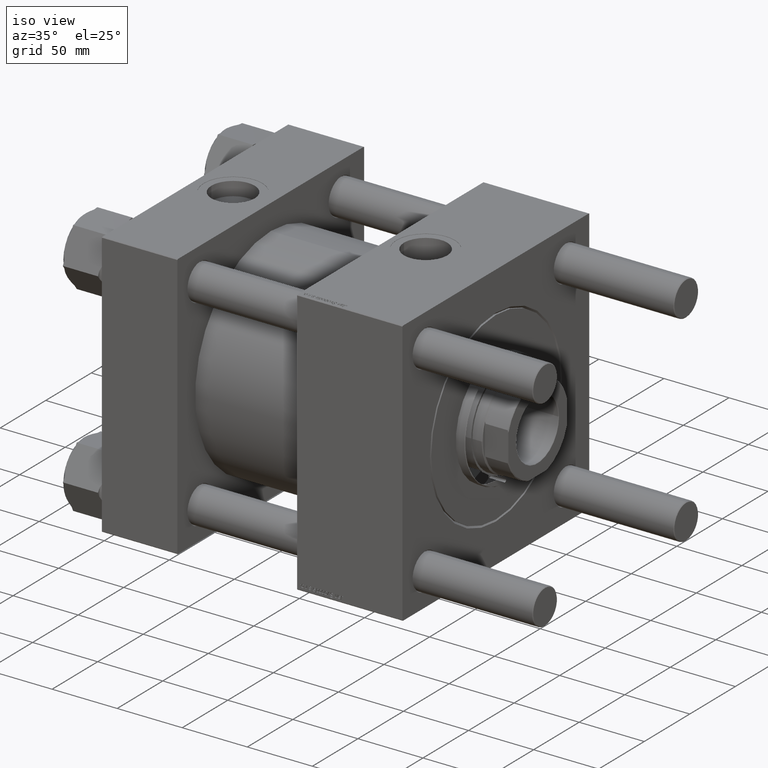
[diagram: clean part render]
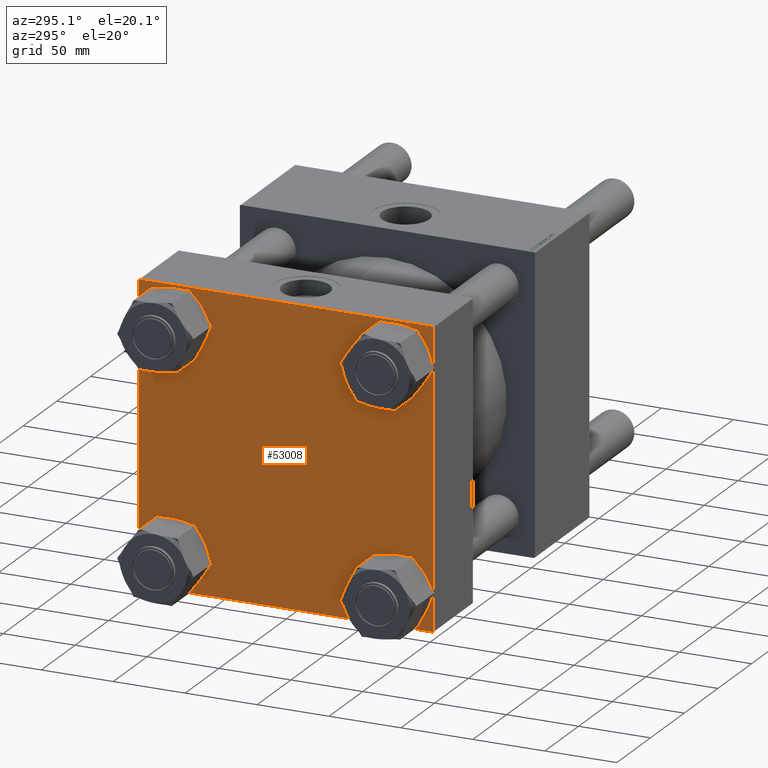
[diagram: tour spotlight — one face highlighted and labeled with its STEP entity id]
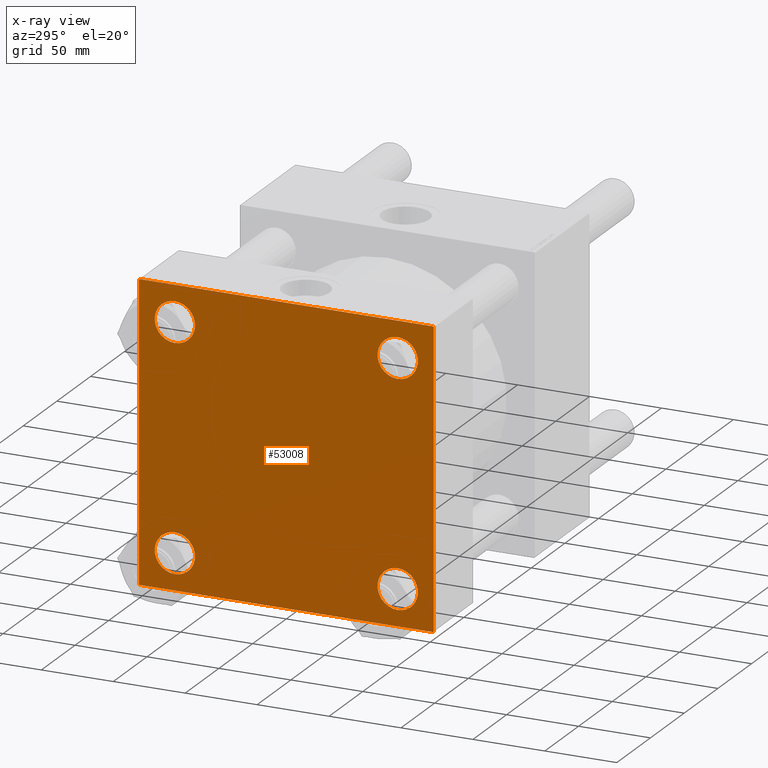
[diagram: x-ray of the same camera — body ghosted, this tour face saturated]
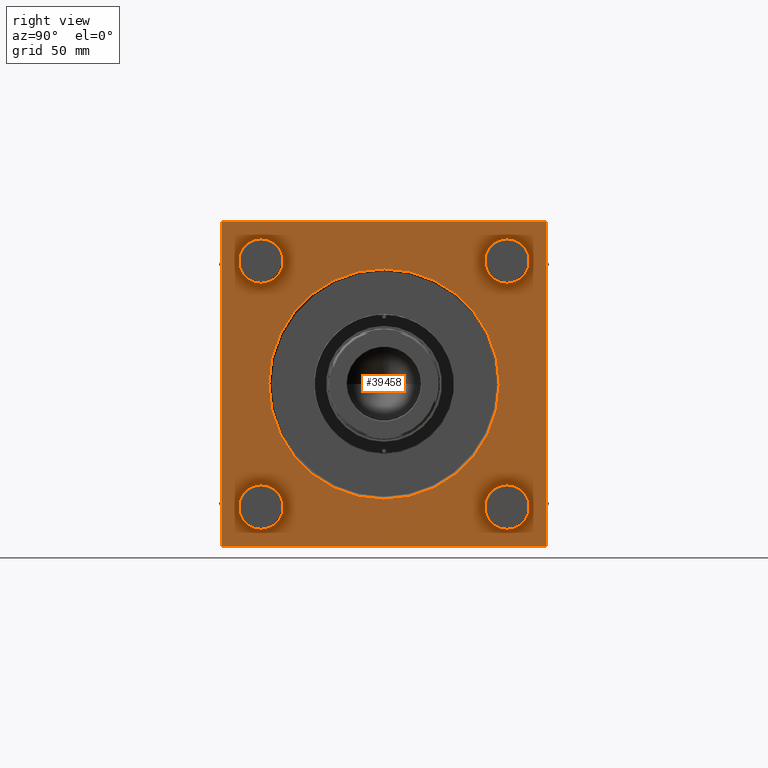
[diagram: tour spotlight — one face highlighted and labeled with its STEP entity id]
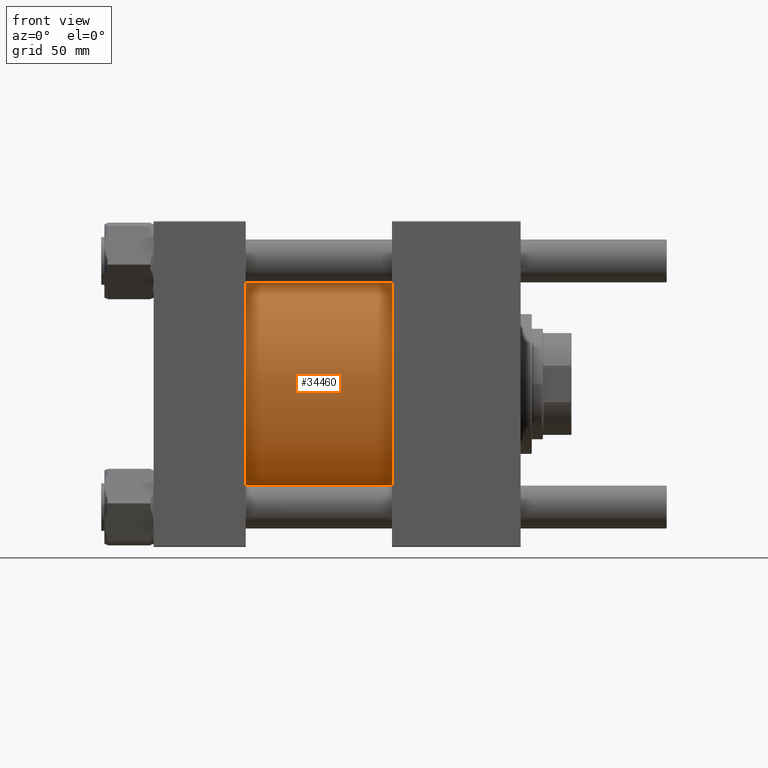
[diagram: tour spotlight — one face highlighted and labeled with its STEP entity id]
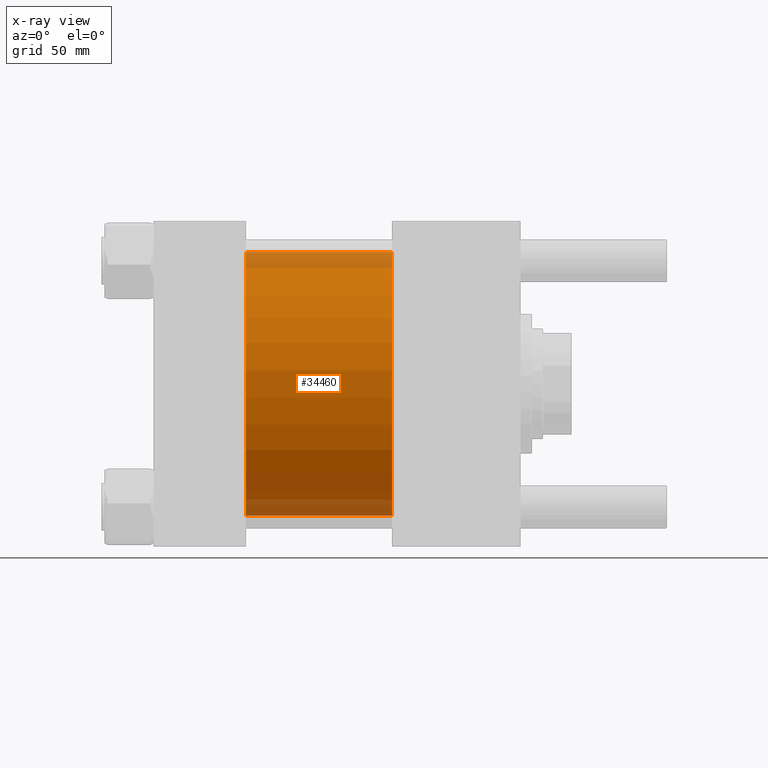
[diagram: x-ray of the same camera — body ghosted, this tour face saturated]
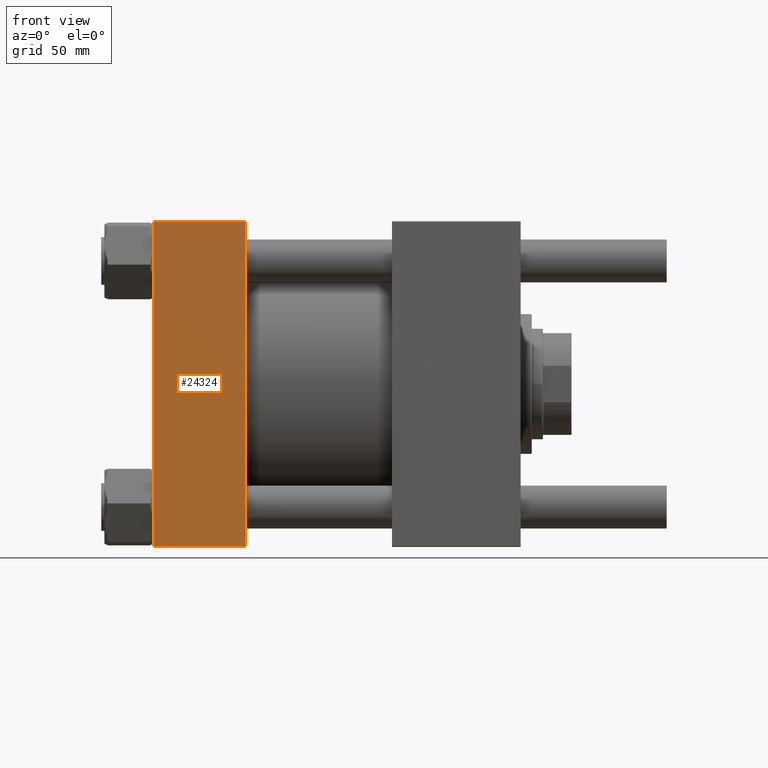
[diagram: tour spotlight — one face highlighted and labeled with its STEP entity id]
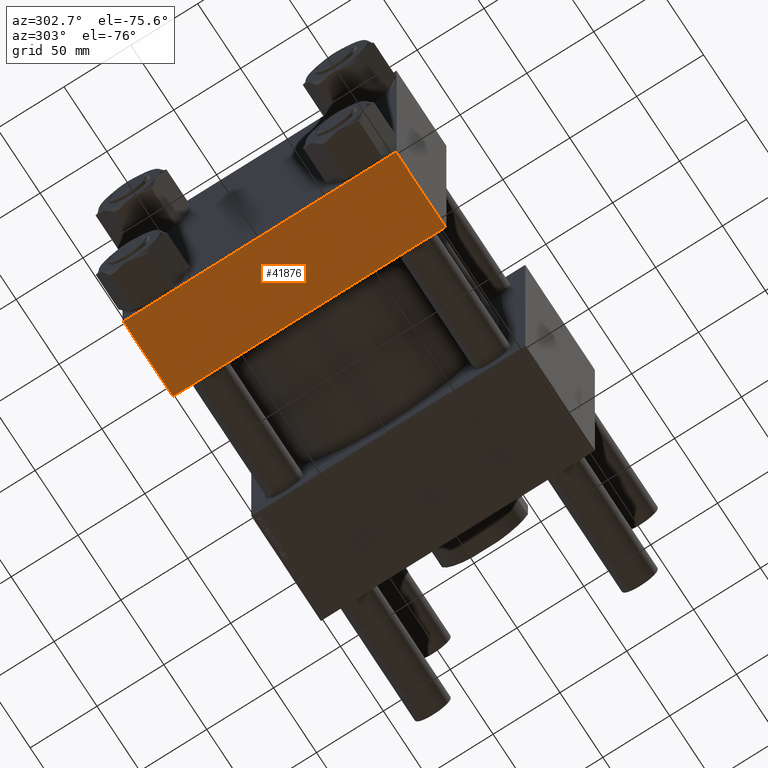
[diagram: tour spotlight — one face highlighted and labeled with its STEP entity id]
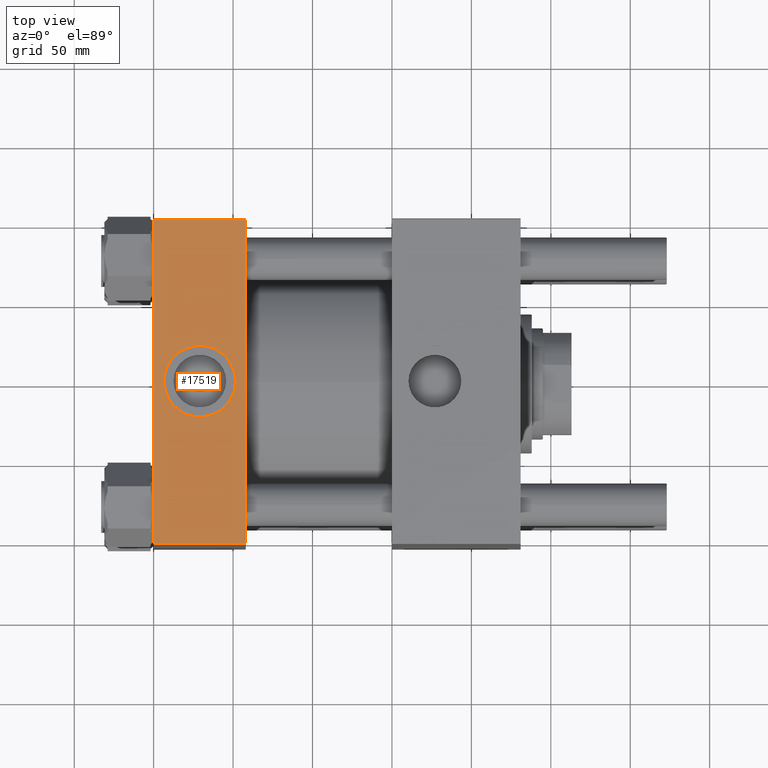
[diagram: tour spotlight — one face highlighted and labeled with its STEP entity id]
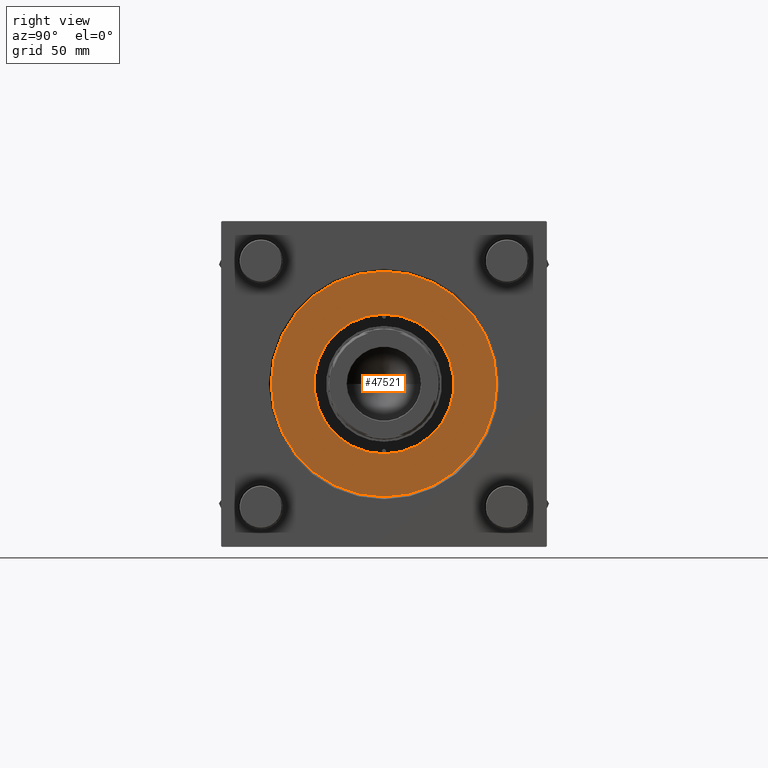
[diagram: tour spotlight — one face highlighted and labeled with its STEP entity id]
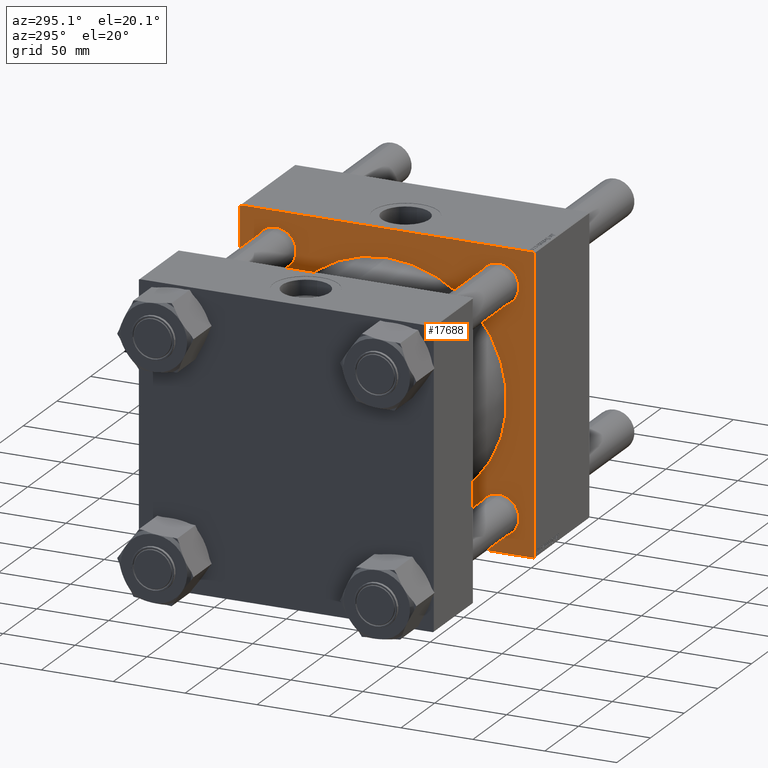
[diagram: tour spotlight — one face highlighted and labeled with its STEP entity id]
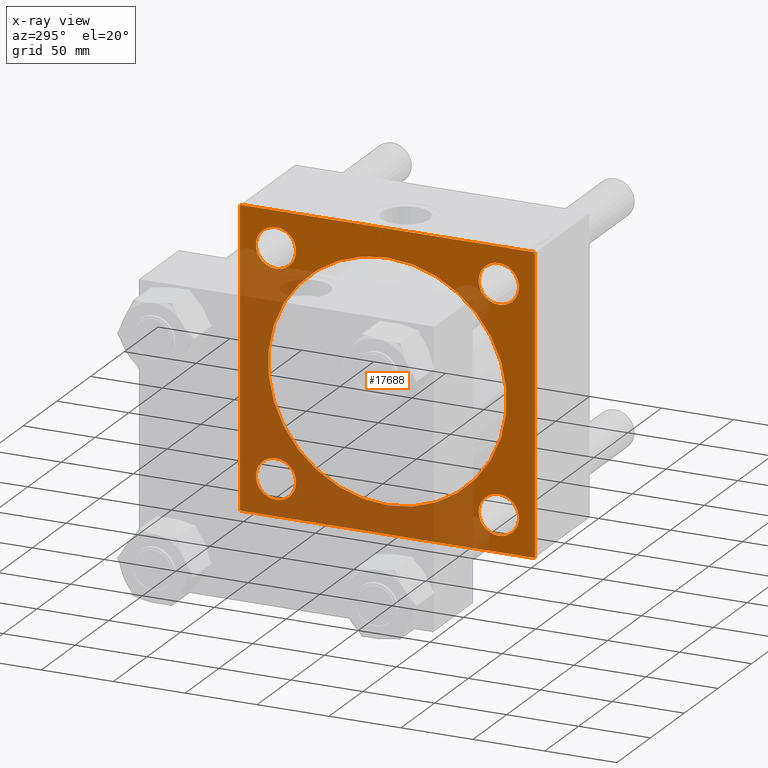
[diagram: x-ray of the same camera — body ghosted, this tour face saturated]
A machine part: a face-by-face anatomy tour. The part has 1212 B-rep faces; the first image is the clean iso view, then the 8 largest visible faces are spotlighted one at a time (largest first), each with its STEP entity span.

Face 1 — auxiliary view, entity #53008. An x-ray twin of the same camera follows (body ghosted, this face saturated) — the face is partly hidden behind the body. In plain terms, the highlighted planar face has unit normal (-1, 0, 0).
Definition (entity closure, byte-faithful):
#194 = DIRECTION ( 'NONE',  ( 1.000000000000000000, -0.000000000000000000, -0.000000000000000000 ) ) ;
#297 = DIRECTION ( 'NONE',  ( 1.000000000000000000, -0.000000000000000000, -0.000000000000000000 ) ) ;
#410 = AXIS2_PLACEMENT_3D ( 'NONE', #53579, #17590, #17880 ) ;
#958 = ORIENTED_EDGE ( 'NONE', *, *, #57356, .T. ) ;
#1175 = VERTEX_POINT ( 'NONE', #39959 ) ;
#1756 = VERTEX_POINT ( 'NONE', #27908 ) ;
#1907 = VERTEX_POINT ( 'NONE', #31061 ) ;
#2059 = LINE ( 'NONE', #15705, #54986 ) ;
#2107 = AXIS2_PLACEMENT_3D ( 'NONE', #22935, #297, #36555 ) ;
#2238 = CARTESIAN_POINT ( 'NONE',  ( 0.000000000000000000, -77.44999999999996021, 91.45000000000015916 ) ) ;
#2447 = CARTESIAN_POINT ( 'NONE',  ( 0.000000000000000000, -101.9999999999999432, -102.5000000000000000 ) ) ;
#2634 = DIRECTION ( 'NONE',  ( -0.000000000000000000, -0.7071067811865474617, -0.7071067811865474617 ) ) ;
#3039 = EDGE_LOOP ( 'NONE', ( #958, #57054 ) ) ;
#4165 = CIRCLE ( 'NONE', #36612, 14.00000000000012434 ) ;
#4681 = ORIENTED_EDGE ( 'NONE', *, *, #31273, .T. ) ;
#4933 = ORIENTED_EDGE ( 'NONE', *, *, #41004, .T. ) ;
#5261 = DIRECTION ( 'NONE',  ( 1.000000000000000000, -0.000000000000000000, -0.000000000000000000 ) ) ;
#5436 = VERTEX_POINT ( 'NONE', #21983 ) ;
#6020 = VECTOR ( 'NONE', #29065, 1000.000000000000114 ) ;
#6226 = ORIENTED_EDGE ( 'NONE', *, *, #16059, .T. ) ;
#6424 = EDGE_LOOP ( 'NONE', ( #4681, #43096 ) ) ;
#7713 = CARTESIAN_POINT ( 'NONE',  ( 0.000000000000000000, -77.44999999999996021, 77.45000000000003126 ) ) ;
#8360 = VERTEX_POINT ( 'NONE', #55231 ) ;
#8437 = ORIENTED_EDGE ( 'NONE', *, *, #10957, .T. ) ;
#9375 = LINE ( 'NONE', #36371, #42863 ) ;
#9584 = CARTESIAN_POINT ( 'NONE',  ( 0.000000000000000000, 77.44999999999998863, -77.45000000000001705 ) ) ;
#10001 = CARTESIAN_POINT ( 'NONE',  ( 0.000000000000000000, 77.44999999999998863, -91.45000000000014495 ) ) ;
#10256 = VERTEX_POINT ( 'NONE', #10001 ) ;
#10746 = DIRECTION ( 'NONE',  ( 0.000000000000000000, 0.000000000000000000, 1.000000000000000000 ) ) ;
#10957 = EDGE_CURVE ( 'NONE', #44862, #44796, #30122, .T. ) ;
#11826 = DIRECTION ( 'NONE',  ( 0.000000000000000000, 0.000000000000000000, -1.000000000000000000 ) ) ;
#11928 = CARTESIAN_POINT ( 'NONE',  ( 0.000000000000000000, -102.2499999999999716, 102.2499999999999716 ) ) ;
#12213 = CIRCLE ( 'NONE', #49326, 14.00000000000012434 ) ;
#12724 = EDGE_CURVE ( 'NONE', #5436, #8360, #12213, .T. ) ;
#12947 = FACE_BOUND ( 'NONE', #52887, .T. ) ;
#14315 = DIRECTION ( 'NONE',  ( 0.000000000000000000, -1.353930517835556973E-16, -1.000000000000000000 ) ) ;
#14558 = VERTEX_POINT ( 'NONE', #23154 ) ;
#15676 = DIRECTION ( 'NONE',  ( 1.000000000000000000, -0.000000000000000000, -0.000000000000000000 ) ) ;
#15705 = CARTESIAN_POINT ( 'NONE',  ( 0.000000000000000000, 102.2500000000000000, -102.2500000000000000 ) ) ;
#16059 = EDGE_CURVE ( 'NONE', #10256, #48333, #29909, .T. ) ;
#16666 = EDGE_CURVE ( 'NONE', #44796, #14558, #2059, .T. ) ;
#17007 = CARTESIAN_POINT ( 'NONE',  ( 0.000000000000000000, -77.44999999999996021, -77.45000000000003126 ) ) ;
#17590 = DIRECTION ( 'NONE',  ( -1.000000000000000000, 0.000000000000000000, 0.000000000000000000 ) ) ;
#17880 = DIRECTION ( 'NONE',  ( 0.000000000000000000, 0.000000000000000000, 1.000000000000000000 ) ) ;
#17884 = DIRECTION ( 'NONE',  ( 0.000000000000000000, 0.000000000000000000, 1.000000000000000000 ) ) ;
#18137 = CIRCLE ( 'NONE', #35787, 14.00000000000012434 ) ;
#18175 = FACE_BOUND ( 'NONE', #38608, .T. ) ;
#19343 = LINE ( 'NONE', #54741, #46612 ) ;
#19674 = LINE ( 'NONE', #37381, #43717 ) ;
#19744 = CARTESIAN_POINT ( 'NONE',  ( 0.000000000000000000, -77.44999999999996021, -77.45000000000003126 ) ) ;
#20049 = CIRCLE ( 'NONE', #52493, 14.00000000000012434 ) ;
#20261 = CARTESIAN_POINT ( 'NONE',  ( 0.000000000000000000, 102.5000000000000284, 102.5000000000000284 ) ) ;
#20588 = EDGE_CURVE ( 'NONE', #48333, #10256, #55109, .T. ) ;
#21255 = EDGE_CURVE ( 'NONE', #48173, #56139, #45407, .T. ) ;
#21454 = DIRECTION ( 'NONE',  ( 0.000000000000000000, -1.000000000000000000, -1.353930517835556973E-16 ) ) ;
#21983 = CARTESIAN_POINT ( 'NONE',  ( 0.000000000000000000, -77.44999999999996021, -63.44999999999991047 ) ) ;
#22935 = CARTESIAN_POINT ( 'NONE',  ( 0.000000000000000000, 77.44999999999998863, -77.45000000000001705 ) ) ;
#23154 = CARTESIAN_POINT ( 'NONE',  ( 0.000000000000000000, 102.0000000000000142, -102.4999999999999716 ) ) ;
#23235 = DIRECTION ( 'NONE',  ( 0.000000000000000000, 0.000000000000000000, 1.000000000000000000 ) ) ;
#23351 = ORIENTED_EDGE ( 'NONE', *, *, #21255, .T. ) ;
#23553 = ORIENTED_EDGE ( 'NONE', *, *, #48264, .F. ) ;
#24549 = DIRECTION ( 'NONE',  ( 0.000000000000000000, -1.000000000000000000, -1.353930517835556727E-16 ) ) ;
#24849 = DIRECTION ( 'NONE',  ( 0.000000000000000000, 0.000000000000000000, 1.000000000000000000 ) ) ;
#24930 = CARTESIAN_POINT ( 'NONE',  ( 0.000000000000000000, 102.5000000000000284, -101.9999999999999147 ) ) ;
#26888 = FACE_BOUND ( 'NONE', #6424, .T. ) ;
#26892 = CARTESIAN_POINT ( 'NONE',  ( 0.000000000000000000, 77.44999999999998863, 77.45000000000001705 ) ) ;
#26967 = EDGE_CURVE ( 'NONE', #8360, #5436, #20049, .T. ) ;
#27090 = CARTESIAN_POINT ( 'NONE',  ( 0.000000000000000000, -102.4999999999999716, 102.0000000000000000 ) ) ;
#27573 = ORIENTED_EDGE ( 'NONE', *, *, #51505, .T. ) ;
#27908 = CARTESIAN_POINT ( 'NONE',  ( 0.000000000000000000, -77.44999999999996021, 63.44999999999991047 ) ) ;
#28314 = CIRCLE ( 'NONE', #47749, 14.00000000000012434 ) ;
#29065 = DIRECTION ( 'NONE',  ( 0.000000000000000000, -0.7071067811865474617, 0.7071067811865474617 ) ) ;
#29583 = VERTEX_POINT ( 'NONE', #27090 ) ;
#29909 = CIRCLE ( 'NONE', #2107, 14.00000000000012434 ) ;
#30122 = LINE ( 'NONE', #20261, #49285 ) ;
#31061 = CARTESIAN_POINT ( 'NONE',  ( 0.000000000000000000, 77.44999999999998863, 63.44999999999989626 ) ) ;
#31273 = EDGE_CURVE ( 'NONE', #1175, #1907, #44153, .T. ) ;
#32083 = CARTESIAN_POINT ( 'NONE',  ( 0.000000000000000000, -102.2499999999999716, -102.2499999999999716 ) ) ;
#33089 = EDGE_LOOP ( 'NONE', ( #8437, #43945, #38707, #23351, #23553, #27573, #37815, #4933 ) ) ;
#33272 = DIRECTION ( 'NONE',  ( 1.000000000000000000, -0.000000000000000000, -0.000000000000000000 ) ) ;
#33351 = EDGE_CURVE ( 'NONE', #38561, #50389, #39715, .T. ) ;
#34136 = DIRECTION ( 'NONE',  ( 1.000000000000000000, -0.000000000000000000, -0.000000000000000000 ) ) ;
#34280 = DIRECTION ( 'NONE',  ( -0.000000000000000000, 0.7071067811865474617, 0.7071067811865474617 ) ) ;
#34662 = VECTOR ( 'NONE', #34280, 1000.000000000000114 ) ;
#35139 = CARTESIAN_POINT ( 'NONE',  ( 0.000000000000000000, 102.0000000000000142, 102.5000000000000284 ) ) ;
#35787 = AXIS2_PLACEMENT_3D ( 'NONE', #41474, #5261, #23235 ) ;
#36162 = PLANE ( 'NONE',  #410 ) ;
#36371 = CARTESIAN_POINT ( 'NONE',  ( 0.000000000000000000, -102.4999999999999716, 102.5000000000000000 ) ) ;
#36555 = DIRECTION ( 'NONE',  ( 0.000000000000000000, 0.000000000000000000, 1.000000000000000000 ) ) ;
#36612 = AXIS2_PLACEMENT_3D ( 'NONE', #54856, #36879, #10746 ) ;
#36879 = DIRECTION ( 'NONE',  ( 1.000000000000000000, -0.000000000000000000, -0.000000000000000000 ) ) ;
#37381 = CARTESIAN_POINT ( 'NONE',  ( 0.000000000000000000, 102.2500000000000142, 102.2500000000000142 ) ) ;
#37449 = DIRECTION ( 'NONE',  ( 0.000000000000000000, 0.000000000000000000, 1.000000000000000000 ) ) ;
#37815 = ORIENTED_EDGE ( 'NONE', *, *, #33351, .F. ) ;
#38561 = VERTEX_POINT ( 'NONE', #35139 ) ;
#38608 = EDGE_LOOP ( 'NONE', ( #52947, #6226 ) ) ;
#38707 = ORIENTED_EDGE ( 'NONE', *, *, #44891, .T. ) ;
#39715 = LINE ( 'NONE', #49018, #46093 ) ;
#39959 = CARTESIAN_POINT ( 'NONE',  ( 0.000000000000000000, 77.44999999999998863, 91.45000000000014495 ) ) ;
#40273 = AXIS2_PLACEMENT_3D ( 'NONE', #9584, #45542, #48790 ) ;
#41004 = EDGE_CURVE ( 'NONE', #38561, #44862, #19674, .T. ) ;
#41474 = CARTESIAN_POINT ( 'NONE',  ( 0.000000000000000000, -77.44999999999996021, 77.45000000000003126 ) ) ;
#41660 = CARTESIAN_POINT ( 'NONE',  ( 0.000000000000000000, 102.5000000000000284, 102.0000000000000142 ) ) ;
#42739 = CARTESIAN_POINT ( 'NONE',  ( 0.000000000000000000, -102.5000000000000000, -101.9999999999998863 ) ) ;
#42863 = VECTOR ( 'NONE', #14315, 1000.000000000000000 ) ;
#43096 = ORIENTED_EDGE ( 'NONE', *, *, #54324, .T. ) ;
#43717 = VECTOR ( 'NONE', #45228, 1000.000000000000114 ) ;
#43945 = ORIENTED_EDGE ( 'NONE', *, *, #16666, .T. ) ;
#44153 = CIRCLE ( 'NONE', #46014, 14.00000000000012434 ) ;
#44796 = VERTEX_POINT ( 'NONE', #24930 ) ;
#44862 = VERTEX_POINT ( 'NONE', #41660 ) ;
#44891 = EDGE_CURVE ( 'NONE', #14558, #48173, #19343, .T. ) ;
#45228 = DIRECTION ( 'NONE',  ( 0.000000000000000000, 0.7071067811865474617, -0.7071067811865474617 ) ) ;
#45407 = LINE ( 'NONE', #32083, #6020 ) ;
#45542 = DIRECTION ( 'NONE',  ( 1.000000000000000000, -0.000000000000000000, -0.000000000000000000 ) ) ;
#45584 = VERTEX_POINT ( 'NONE', #2238 ) ;
#45624 = CARTESIAN_POINT ( 'NONE',  ( 0.000000000000000000, 77.44999999999998863, -63.44999999999989626 ) ) ;
#46014 = AXIS2_PLACEMENT_3D ( 'NONE', #26892, #194, #17884 ) ;
#46093 = VECTOR ( 'NONE', #21454, 1000.000000000000000 ) ;
#46612 = VECTOR ( 'NONE', #24549, 1000.000000000000000 ) ;
#47624 = LINE ( 'NONE', #11928, #34662 ) ;
#47749 = AXIS2_PLACEMENT_3D ( 'NONE', #7713, #33272, #56479 ) ;
#47939 = ORIENTED_EDGE ( 'NONE', *, *, #26967, .T. ) ;
#48173 = VERTEX_POINT ( 'NONE', #2447 ) ;
#48264 = EDGE_CURVE ( 'NONE', #29583, #56139, #9375, .T. ) ;
#48333 = VERTEX_POINT ( 'NONE', #45624 ) ;
#48790 = DIRECTION ( 'NONE',  ( 0.000000000000000000, 0.000000000000000000, 1.000000000000000000 ) ) ;
#49018 = CARTESIAN_POINT ( 'NONE',  ( 0.000000000000000000, 102.5000000000000284, 102.5000000000000284 ) ) ;
#49285 = VECTOR ( 'NONE', #11826, 1000.000000000000000 ) ;
#49326 = AXIS2_PLACEMENT_3D ( 'NONE', #17007, #34136, #24849 ) ;
#50389 = VERTEX_POINT ( 'NONE', #54977 ) ;
#51505 = EDGE_CURVE ( 'NONE', #29583, #50389, #47624, .T. ) ;
#52017 = ORIENTED_EDGE ( 'NONE', *, *, #12724, .T. ) ;
#52493 = AXIS2_PLACEMENT_3D ( 'NONE', #19744, #15676, #37449 ) ;
#52710 = FACE_BOUND ( 'NONE', #3039, .T. ) ;
#52887 = EDGE_LOOP ( 'NONE', ( #52017, #47939 ) ) ;
#52947 = ORIENTED_EDGE ( 'NONE', *, *, #20588, .T. ) ;
#52985 = FACE_OUTER_BOUND ( 'NONE', #33089, .T. ) ;
#53008 = ADVANCED_FACE ( 'NONE', ( #52710, #12947, #18175, #26888, #52985 ), #36162, .T. ) ;
#53579 = CARTESIAN_POINT ( 'NONE',  ( 0.000000000000000000, 0.000000000000000000, 0.000000000000000000 ) ) ;
#54324 = EDGE_CURVE ( 'NONE', #1907, #1175, #4165, .T. ) ;
#54741 = CARTESIAN_POINT ( 'NONE',  ( 0.000000000000000000, 102.5000000000000284, -102.4999999999999716 ) ) ;
#54856 = CARTESIAN_POINT ( 'NONE',  ( 0.000000000000000000, 77.44999999999998863, 77.45000000000001705 ) ) ;
#54977 = CARTESIAN_POINT ( 'NONE',  ( 0.000000000000000000, -101.9999999999999147, 102.5000000000000000 ) ) ;
#54986 = VECTOR ( 'NONE', #2634, 1000.000000000000114 ) ;
#55109 = CIRCLE ( 'NONE', #40273, 14.00000000000012434 ) ;
#55231 = CARTESIAN_POINT ( 'NONE',  ( 0.000000000000000000, -77.44999999999996021, -91.45000000000015916 ) ) ;
#55841 = EDGE_CURVE ( 'NONE', #1756, #45584, #28314, .T. ) ;
#56139 = VERTEX_POINT ( 'NONE', #42739 ) ;
#56479 = DIRECTION ( 'NONE',  ( 0.000000000000000000, 0.000000000000000000, 1.000000000000000000 ) ) ;
#57054 = ORIENTED_EDGE ( 'NONE', *, *, #55841, .T. ) ;
#57356 = EDGE_CURVE ( 'NONE', #45584, #1756, #18137, .T. ) ;

Face 2 — right view, entity #39458. In plain terms, the highlighted planar face has unit normal (-1, 0, 0).
Definition (entity closure, byte-faithful):
#797 = CARTESIAN_POINT ( 'NONE',  ( 230.9999999999999716, -77.44999999999996021, -77.45000000000003126 ) ) ;
#1475 = CARTESIAN_POINT ( 'NONE',  ( 230.9999999999999716, -102.4999999999999716, 102.4999999999999858 ) ) ;
#1964 = DIRECTION ( 'NONE',  ( 0.000000000000000000, 0.000000000000000000, 1.000000000000000000 ) ) ;
#2291 = EDGE_CURVE ( 'NONE', #54097, #28167, #36953, .T. ) ;
#2661 = FACE_BOUND ( 'NONE', #15235, .T. ) ;
#4151 = VERTEX_POINT ( 'NONE', #23678 ) ;
#4923 = EDGE_LOOP ( 'NONE', ( #45990, #43753 ) ) ;
#4963 = VECTOR ( 'NONE', #48091, 1000.000000000000114 ) ;
#4980 = ORIENTED_EDGE ( 'NONE', *, *, #25575, .T. ) ;
#5287 = CARTESIAN_POINT ( 'NONE',  ( 230.9999999999999716, -102.0000000000000568, 102.4999999999999858 ) ) ;
#5520 = EDGE_CURVE ( 'NONE', #34986, #18838, #15869, .T. ) ;
#5865 = EDGE_LOOP ( 'NONE', ( #45441, #4980, #16199, #17358, #33227, #31543, #20301, #17465 ) ) ;
#6374 = DIRECTION ( 'NONE',  ( -1.000000000000000000, 0.000000000000000000, 0.000000000000000000 ) ) ;
#6613 = DIRECTION ( 'NONE',  ( -1.000000000000000000, 0.000000000000000000, 0.000000000000000000 ) ) ;
#6706 = VERTEX_POINT ( 'NONE', #8701 ) ;
#6713 = AXIS2_PLACEMENT_3D ( 'NONE', #51324, #7487, #29547 ) ;
#7042 = AXIS2_PLACEMENT_3D ( 'NONE', #10436, #28430, #37705 ) ;
#7487 = DIRECTION ( 'NONE',  ( -1.000000000000000000, 0.000000000000000000, 0.000000000000000000 ) ) ;
#7878 = FACE_BOUND ( 'NONE', #23687, .T. ) ;
#8570 = VERTEX_POINT ( 'NONE', #5287 ) ;
#8701 = CARTESIAN_POINT ( 'NONE',  ( 230.9999999999999716, -102.4999999999999716, 102.0000000000000284 ) ) ;
#9080 = CARTESIAN_POINT ( 'NONE',  ( 230.9999999999999716, 101.9999999999999574, -102.5000000000000142 ) ) ;
#9185 = LINE ( 'NONE', #26335, #4963 ) ;
#9476 = AXIS2_PLACEMENT_3D ( 'NONE', #16967, #34675, #17268 ) ;
#9771 = DIRECTION ( 'NONE',  ( 0.000000000000000000, 0.000000000000000000, 1.000000000000000000 ) ) ;
#10051 = CARTESIAN_POINT ( 'NONE',  ( 230.9999999999999716, 77.44999999999998863, -77.45000000000001705 ) ) ;
#10148 = CARTESIAN_POINT ( 'NONE',  ( 230.9999999999999716, 102.5000000000000142, -101.9999999999999574 ) ) ;
#10436 = CARTESIAN_POINT ( 'NONE',  ( 230.9999999999999716, 0.000000000000000000, 0.000000000000000000 ) ) ;
#10696 = ORIENTED_EDGE ( 'NONE', *, *, #47516, .T. ) ;
#10789 = DIRECTION ( 'NONE',  ( 0.000000000000000000, 0.7071067811865965336, -0.7071067811864985009 ) ) ;
#11081 = EDGE_CURVE ( 'NONE', #18838, #34986, #48362, .T. ) ;
#11384 = AXIS2_PLACEMENT_3D ( 'NONE', #10051, #50104, #9771 ) ;
#11506 = ORIENTED_EDGE ( 'NONE', *, *, #15542, .T. ) ;
#11658 = CARTESIAN_POINT ( 'NONE',  ( 230.9999999999999716, -77.44999999999996021, 63.45000000000001705 ) ) ;
#11938 = DIRECTION ( 'NONE',  ( 0.000000000000000000, 0.000000000000000000, 1.000000000000000000 ) ) ;
#12135 = AXIS2_PLACEMENT_3D ( 'NONE', #20105, #37807, #55517 ) ;
#12244 = EDGE_CURVE ( 'NONE', #42577, #45729, #37561, .T. ) ;
#14039 = EDGE_CURVE ( 'NONE', #28422, #53110, #36392, .T. ) ;
#14307 = EDGE_CURVE ( 'NONE', #28167, #54097, #44699, .T. ) ;
#14544 = LINE ( 'NONE', #1475, #28889 ) ;
#15029 = VECTOR ( 'NONE', #38080, 1000.000000000000000 ) ;
#15148 = LINE ( 'NONE', #50560, #23749 ) ;
#15235 = EDGE_LOOP ( 'NONE', ( #47210, #10696 ) ) ;
#15277 = DIRECTION ( 'NONE',  ( 0.000000000000000000, 0.000000000000000000, 1.000000000000000000 ) ) ;
#15542 = EDGE_CURVE ( 'NONE', #4151, #28956, #26251, .T. ) ;
#15869 = CIRCLE ( 'NONE', #12135, 14.00000000000001243 ) ;
#15905 = VERTEX_POINT ( 'NONE', #22716 ) ;
#16012 = VECTOR ( 'NONE', #54343, 1000.000000000000114 ) ;
#16199 = ORIENTED_EDGE ( 'NONE', *, *, #12244, .F. ) ;
#16483 = CARTESIAN_POINT ( 'NONE',  ( 230.9999999999999716, 77.44999999999998863, -63.45000000000000284 ) ) ;
#16921 = CIRCLE ( 'NONE', #21576, 14.00000000000001243 ) ;
#16967 = CARTESIAN_POINT ( 'NONE',  ( 230.9999999999999716, 0.000000000000000000, 0.000000000000000000 ) ) ;
#17268 = DIRECTION ( 'NONE',  ( 0.000000000000000000, 0.000000000000000000, 1.000000000000000000 ) ) ;
#17358 = ORIENTED_EDGE ( 'NONE', *, *, #43438, .T. ) ;
#17465 = ORIENTED_EDGE ( 'NONE', *, *, #41586, .T. ) ;
#18838 = VERTEX_POINT ( 'NONE', #41947 ) ;
#19141 = CIRCLE ( 'NONE', #51572, 14.00000000000001243 ) ;
#20105 = CARTESIAN_POINT ( 'NONE',  ( 230.9999999999999716, -77.44999999999996021, -77.45000000000003126 ) ) ;
#20301 = ORIENTED_EDGE ( 'NONE', *, *, #42307, .T. ) ;
#20367 = PLANE ( 'NONE',  #35380 ) ;
#20429 = VERTEX_POINT ( 'NONE', #10148 ) ;
#20604 = CIRCLE ( 'NONE', #9476, 72.50000000000001421 ) ;
#21527 = CARTESIAN_POINT ( 'NONE',  ( 230.9999999999999716, 102.5000000000000142, 102.5000000000000142 ) ) ;
#21576 = AXIS2_PLACEMENT_3D ( 'NONE', #46643, #6613, #1964 ) ;
#22192 = CARTESIAN_POINT ( 'NONE',  ( 230.9999999999999716, 102.5000000000000142, 102.0000000000000142 ) ) ;
#22716 = CARTESIAN_POINT ( 'NONE',  ( 230.9999999999999716, 102.0000000000000142, 102.5000000000000142 ) ) ;
#23522 = CARTESIAN_POINT ( 'NONE',  ( 230.9999999999999716, -102.5000000000000000, -102.0000000000000284 ) ) ;
#23678 = CARTESIAN_POINT ( 'NONE',  ( 230.9999999999999716, 77.44999999999998863, -91.45000000000003126 ) ) ;
#23687 = EDGE_LOOP ( 'NONE', ( #53946, #49109 ) ) ;
#23749 = VECTOR ( 'NONE', #10789, 1000.000000000000114 ) ;
#24834 = CARTESIAN_POINT ( 'NONE',  ( 230.9999999999999716, 102.5000000000000142, 102.5000000000000142 ) ) ;
#24935 = CARTESIAN_POINT ( 'NONE',  ( 230.9999999999999716, 8.878689293818310863E-15, 72.50000000000001421 ) ) ;
#25575 = EDGE_CURVE ( 'NONE', #30774, #45729, #15148, .T. ) ;
#26251 = CIRCLE ( 'NONE', #11384, 14.00000000000001243 ) ;
#26335 = CARTESIAN_POINT ( 'NONE',  ( 230.9999999999999716, 102.0000000000000142, 102.5000000000000142 ) ) ;
#26471 = LINE ( 'NONE', #21527, #47663 ) ;
#26771 = ORIENTED_EDGE ( 'NONE', *, *, #29958, .T. ) ;
#28033 = VECTOR ( 'NONE', #30064, 1000.000000000000000 ) ;
#28167 = VERTEX_POINT ( 'NONE', #46647 ) ;
#28199 = CARTESIAN_POINT ( 'NONE',  ( 230.9999999999999716, 77.44999999999998863, 77.45000000000001705 ) ) ;
#28327 = CARTESIAN_POINT ( 'NONE',  ( 230.9999999999999716, 77.44999999999998863, 63.45000000000000284 ) ) ;
#28379 = CARTESIAN_POINT ( 'NONE',  ( 230.9999999999999716, -77.44999999999996021, -63.45000000000001705 ) ) ;
#28422 = VERTEX_POINT ( 'NONE', #28327 ) ;
#28430 = DIRECTION ( 'NONE',  ( -1.000000000000000000, 0.000000000000000000, 0.000000000000000000 ) ) ;
#28443 = VERTEX_POINT ( 'NONE', #50679 ) ;
#28889 = VECTOR ( 'NONE', #40931, 1000.000000000000000 ) ;
#28956 = VERTEX_POINT ( 'NONE', #16483 ) ;
#29547 = DIRECTION ( 'NONE',  ( 0.000000000000000000, 0.000000000000000000, 1.000000000000000000 ) ) ;
#29663 = CARTESIAN_POINT ( 'NONE',  ( 230.9999999999999716, -102.4999999999999716, 102.0000000000000284 ) ) ;
#29866 = EDGE_CURVE ( 'NONE', #28443, #54466, #57102, .T. ) ;
#29958 = EDGE_CURVE ( 'NONE', #28956, #4151, #19141, .T. ) ;
#30064 = DIRECTION ( 'NONE',  ( 0.000000000000000000, -1.000000000000000000, -1.353930517835556973E-16 ) ) ;
#30238 = CARTESIAN_POINT ( 'NONE',  ( 230.9999999999999716, 0.000000000000000000, 0.000000000000000000 ) ) ;
#30774 = VERTEX_POINT ( 'NONE', #23522 ) ;
#31158 = DIRECTION ( 'NONE',  ( -1.000000000000000000, 0.000000000000000000, 0.000000000000000000 ) ) ;
#31543 = ORIENTED_EDGE ( 'NONE', *, *, #49509, .T. ) ;
#32093 = CARTESIAN_POINT ( 'NONE',  ( 230.9999999999999716, -101.9999999999999289, -102.5000000000000284 ) ) ;
#33227 = ORIENTED_EDGE ( 'NONE', *, *, #53436, .F. ) ;
#34413 = LINE ( 'NONE', #24834, #28033 ) ;
#34583 = FACE_OUTER_BOUND ( 'NONE', #5865, .T. ) ;
#34675 = DIRECTION ( 'NONE',  ( -1.000000000000000000, 0.000000000000000000, 0.000000000000000000 ) ) ;
#34876 = DIRECTION ( 'NONE',  ( 0.000000000000000000, 0.000000000000000000, -1.000000000000000000 ) ) ;
#34986 = VERTEX_POINT ( 'NONE', #28379 ) ;
#35176 = ORIENTED_EDGE ( 'NONE', *, *, #2291, .T. ) ;
#35380 = AXIS2_PLACEMENT_3D ( 'NONE', #30238, #52278, #11938 ) ;
#35397 = VECTOR ( 'NONE', #37838, 1000.000000000000000 ) ;
#36392 = CIRCLE ( 'NONE', #56773, 14.00000000000001243 ) ;
#36650 = CARTESIAN_POINT ( 'NONE',  ( 230.9999999999999716, 102.5000000000000142, -101.9999999999999574 ) ) ;
#36953 = CIRCLE ( 'NONE', #47265, 14.00000000000001243 ) ;
#37008 = CARTESIAN_POINT ( 'NONE',  ( 230.9999999999999716, 77.44999999999998863, 91.45000000000003126 ) ) ;
#37561 = LINE ( 'NONE', #56408, #35397 ) ;
#37697 = ORIENTED_EDGE ( 'NONE', *, *, #14307, .T. ) ;
#37705 = DIRECTION ( 'NONE',  ( 0.000000000000000000, 0.000000000000000000, 1.000000000000000000 ) ) ;
#37807 = DIRECTION ( 'NONE',  ( -1.000000000000000000, 0.000000000000000000, 0.000000000000000000 ) ) ;
#37838 = DIRECTION ( 'NONE',  ( 0.000000000000000000, -1.000000000000000000, -1.353930517835556727E-16 ) ) ;
#38080 = DIRECTION ( 'NONE',  ( -0.000000000000000000, -0.7071067811865181518, -0.7071067811865769936 ) ) ;
#38371 = LINE ( 'NONE', #29663, #15029 ) ;
#38637 = FACE_BOUND ( 'NONE', #4923, .T. ) ;
#39066 = AXIS2_PLACEMENT_3D ( 'NONE', #797, #41652, #15277 ) ;
#39458 = ADVANCED_FACE ( 'NONE', ( #38637, #42401, #2661, #51707, #7878, #34583 ), #20367, .F. ) ;
#39853 = CARTESIAN_POINT ( 'NONE',  ( 230.9999999999999716, -77.44999999999996021, 77.45000000000003126 ) ) ;
#40140 = DIRECTION ( 'NONE',  ( 0.000000000000000000, 0.000000000000000000, 1.000000000000000000 ) ) ;
#40573 = EDGE_CURVE ( 'NONE', #6706, #30774, #14544, .T. ) ;
#40931 = DIRECTION ( 'NONE',  ( 0.000000000000000000, -1.353930517835556727E-16, -1.000000000000000000 ) ) ;
#41399 = EDGE_CURVE ( 'NONE', #54466, #28443, #20604, .T. ) ;
#41521 = DIRECTION ( 'NONE',  ( -1.000000000000000000, 0.000000000000000000, 0.000000000000000000 ) ) ;
#41586 = EDGE_CURVE ( 'NONE', #8570, #6706, #38371, .T. ) ;
#41652 = DIRECTION ( 'NONE',  ( -1.000000000000000000, 0.000000000000000000, 0.000000000000000000 ) ) ;
#41947 = CARTESIAN_POINT ( 'NONE',  ( 230.9999999999999716, -77.44999999999996021, -91.45000000000004547 ) ) ;
#42307 = EDGE_CURVE ( 'NONE', #15905, #8570, #34413, .T. ) ;
#42401 = FACE_BOUND ( 'NONE', #52640, .T. ) ;
#42577 = VERTEX_POINT ( 'NONE', #9080 ) ;
#43438 = EDGE_CURVE ( 'NONE', #42577, #20429, #45617, .T. ) ;
#43753 = ORIENTED_EDGE ( 'NONE', *, *, #5520, .T. ) ;
#43812 = EDGE_LOOP ( 'NONE', ( #35176, #37697 ) ) ;
#44699 = CIRCLE ( 'NONE', #6713, 14.00000000000001243 ) ;
#45441 = ORIENTED_EDGE ( 'NONE', *, *, #40573, .T. ) ;
#45617 = LINE ( 'NONE', #36650, #16012 ) ;
#45729 = VERTEX_POINT ( 'NONE', #32093 ) ;
#45990 = ORIENTED_EDGE ( 'NONE', *, *, #11081, .T. ) ;
#46643 = CARTESIAN_POINT ( 'NONE',  ( 230.9999999999999716, 77.44999999999998863, 77.45000000000001705 ) ) ;
#46647 = CARTESIAN_POINT ( 'NONE',  ( 230.9999999999999716, -77.44999999999996021, 91.45000000000004547 ) ) ;
#47210 = ORIENTED_EDGE ( 'NONE', *, *, #14039, .T. ) ;
#47265 = AXIS2_PLACEMENT_3D ( 'NONE', #39853, #31158, #40140 ) ;
#47516 = EDGE_CURVE ( 'NONE', #53110, #28422, #16921, .T. ) ;
#47663 = VECTOR ( 'NONE', #34876, 1000.000000000000000 ) ;
#48091 = DIRECTION ( 'NONE',  ( 0.000000000000000000, -0.7071067811865474617, 0.7071067811865474617 ) ) ;
#48362 = CIRCLE ( 'NONE', #39066, 14.00000000000001243 ) ;
#49109 = ORIENTED_EDGE ( 'NONE', *, *, #41399, .T. ) ;
#49509 = EDGE_CURVE ( 'NONE', #55090, #15905, #9185, .T. ) ;
#49936 = DIRECTION ( 'NONE',  ( 0.000000000000000000, 0.000000000000000000, 1.000000000000000000 ) ) ;
#50104 = DIRECTION ( 'NONE',  ( -1.000000000000000000, 0.000000000000000000, 0.000000000000000000 ) ) ;
#50560 = CARTESIAN_POINT ( 'NONE',  ( 230.9999999999999716, -101.9999999999999289, -102.5000000000000284 ) ) ;
#50679 = CARTESIAN_POINT ( 'NONE',  ( 230.9999999999999716, 0.000000000000000000, -72.50000000000001421 ) ) ;
#51324 = CARTESIAN_POINT ( 'NONE',  ( 230.9999999999999716, -77.44999999999996021, 77.45000000000003126 ) ) ;
#51572 = AXIS2_PLACEMENT_3D ( 'NONE', #54269, #6374, #49936 ) ;
#51707 = FACE_BOUND ( 'NONE', #43812, .T. ) ;
#52278 = DIRECTION ( 'NONE',  ( -1.000000000000000000, 0.000000000000000000, 0.000000000000000000 ) ) ;
#52640 = EDGE_LOOP ( 'NONE', ( #11506, #26771 ) ) ;
#53110 = VERTEX_POINT ( 'NONE', #37008 ) ;
#53436 = EDGE_CURVE ( 'NONE', #55090, #20429, #26471, .T. ) ;
#53946 = ORIENTED_EDGE ( 'NONE', *, *, #29866, .T. ) ;
#54097 = VERTEX_POINT ( 'NONE', #11658 ) ;
#54269 = CARTESIAN_POINT ( 'NONE',  ( 230.9999999999999716, 77.44999999999998863, -77.45000000000001705 ) ) ;
#54343 = DIRECTION ( 'NONE',  ( -0.000000000000000000, 0.7071067811865474617, 0.7071067811865474617 ) ) ;
#54466 = VERTEX_POINT ( 'NONE', #24935 ) ;
#55090 = VERTEX_POINT ( 'NONE', #22192 ) ;
#55464 = DIRECTION ( 'NONE',  ( 0.000000000000000000, 0.000000000000000000, 1.000000000000000000 ) ) ;
#55517 = DIRECTION ( 'NONE',  ( 0.000000000000000000, 0.000000000000000000, 1.000000000000000000 ) ) ;
#56408 = CARTESIAN_POINT ( 'NONE',  ( 230.9999999999999716, 102.5000000000000142, -102.5000000000000142 ) ) ;
#56773 = AXIS2_PLACEMENT_3D ( 'NONE', #28199, #41521, #55464 ) ;
#57102 = CIRCLE ( 'NONE', #7042, 72.50000000000001421 ) ;

Face 3 — front view, entity #34460. An x-ray twin of the same camera follows (body ghosted, this face saturated) — the face is partly hidden behind the body. In plain terms, the highlighted cylindrical surface (partial cylindrical patch) has radius 83 mm, axis along (-1, -0, -0).
Definition (entity closure, byte-faithful):
#48 = DIRECTION ( 'NONE',  ( -1.000000000000000000, -0.000000000000000000, -0.000000000000000000 ) ) ;
#903 = LINE ( 'NONE', #18036, #22657 ) ;
#5109 = EDGE_LOOP ( 'NONE', ( #27797, #46949, #9341, #55877 ) ) ;
#6169 = EDGE_CURVE ( 'NONE', #20184, #43456, #22351, .T. ) ;
#8623 = DIRECTION ( 'NONE',  ( 0.000000000000000000, 0.000000000000000000, -1.000000000000000000 ) ) ;
#8906 = VERTEX_POINT ( 'NONE', #53672 ) ;
#9341 = ORIENTED_EDGE ( 'NONE', *, *, #52514, .T. ) ;
#9889 = DIRECTION ( 'NONE',  ( 0.000000000000000000, 0.000000000000000000, 1.000000000000000000 ) ) ;
#10303 = DIRECTION ( 'NONE',  ( 0.000000000000000000, 0.000000000000000000, 1.000000000000000000 ) ) ;
#14245 = DIRECTION ( 'NONE',  ( 1.000000000000000000, -0.000000000000000000, -0.000000000000000000 ) ) ;
#14392 = DIRECTION ( 'NONE',  ( -1.000000000000000000, -0.000000000000000000, -0.000000000000000000 ) ) ;
#15023 = AXIS2_PLACEMENT_3D ( 'NONE', #18591, #14245, #9889 ) ;
#17001 = LINE ( 'NONE', #43106, #36470 ) ;
#17514 = EDGE_CURVE ( 'NONE', #43456, #33964, #17001, .T. ) ;
#18036 = CARTESIAN_POINT ( 'NONE',  ( 150.0000000000000000, -2.602085213965210642E-15, 83.00000000000000000 ) ) ;
#18591 = CARTESIAN_POINT ( 'NONE',  ( 57.99999999999999289, -2.602085213965210642E-15, 0.000000000000000000 ) ) ;
#20184 = VERTEX_POINT ( 'NONE', #34931 ) ;
#22351 = CIRCLE ( 'NONE', #23306, 83.00000000000000000 ) ;
#22657 = VECTOR ( 'NONE', #48, 1000.000000000000000 ) ;
#23306 = AXIS2_PLACEMENT_3D ( 'NONE', #52157, #35047, #8623 ) ;
#24294 = CIRCLE ( 'NONE', #15023, 83.00000000000000000 ) ;
#27330 = CARTESIAN_POINT ( 'NONE',  ( 57.99999999999999289, 7.562483218957820855E-15, -83.00000000000000000 ) ) ;
#27739 = FACE_OUTER_BOUND ( 'NONE', #5109, .T. ) ;
#27797 = ORIENTED_EDGE ( 'NONE', *, *, #17514, .F. ) ;
#33964 = VERTEX_POINT ( 'NONE', #27330 ) ;
#34460 = ADVANCED_FACE ( 'NONE', ( #27739 ), #37583, .T. ) ;
#34931 = CARTESIAN_POINT ( 'NONE',  ( 150.0000000000000000, -2.602085213965210642E-15, 83.00000000000000000 ) ) ;
#35047 = DIRECTION ( 'NONE',  ( 1.000000000000000000, 0.000000000000000000, 0.000000000000000000 ) ) ;
#36470 = VECTOR ( 'NONE', #43400, 1000.000000000000000 ) ;
#36735 = CARTESIAN_POINT ( 'NONE',  ( 150.0000000000000000, -2.602085213965210642E-15, 0.000000000000000000 ) ) ;
#37583 = CYLINDRICAL_SURFACE ( 'NONE', #49865, 83.00000000000000000 ) ;
#38334 = CARTESIAN_POINT ( 'NONE',  ( 150.0000000000000000, 7.562483218957820855E-15, -83.00000000000000000 ) ) ;
#43106 = CARTESIAN_POINT ( 'NONE',  ( 150.0000000000000000, 7.562483218957820855E-15, -83.00000000000000000 ) ) ;
#43400 = DIRECTION ( 'NONE',  ( -1.000000000000000000, -0.000000000000000000, -0.000000000000000000 ) ) ;
#43456 = VERTEX_POINT ( 'NONE', #38334 ) ;
#45273 = EDGE_CURVE ( 'NONE', #8906, #33964, #24294, .T. ) ;
#46949 = ORIENTED_EDGE ( 'NONE', *, *, #6169, .F. ) ;
#49865 = AXIS2_PLACEMENT_3D ( 'NONE', #36735, #14392, #10303 ) ;
#52157 = CARTESIAN_POINT ( 'NONE',  ( 150.0000000000000000, -2.602085213965210642E-15, 0.000000000000000000 ) ) ;
#52514 = EDGE_CURVE ( 'NONE', #20184, #8906, #903, .T. ) ;
#53672 = CARTESIAN_POINT ( 'NONE',  ( 57.99999999999999289, -2.602085213965210642E-15, 83.00000000000000000 ) ) ;
#55877 = ORIENTED_EDGE ( 'NONE', *, *, #45273, .T. ) ;

Face 4 — front view, entity #24324. In plain terms, the highlighted planar face has unit normal (0, 1, -0).
Definition (entity closure, byte-faithful):
#157 = DIRECTION ( 'NONE',  ( 0.000000000000000000, 1.000000000000000000, -1.353930517835556973E-16 ) ) ;
#562 = AXIS2_PLACEMENT_3D ( 'NONE', #44529, #157, #35569 ) ;
#1807 = CARTESIAN_POINT ( 'NONE',  ( 58.00000000000000000, -102.4999999999999716, 102.5000000000000000 ) ) ;
#2926 = CARTESIAN_POINT ( 'NONE',  ( 58.00000000000000000, -102.5000000000000000, -101.9999999999998863 ) ) ;
#3172 = VERTEX_POINT ( 'NONE', #26617 ) ;
#5868 = CARTESIAN_POINT ( 'NONE',  ( 58.00000000000000000, -102.4999999999999716, 102.0000000000000000 ) ) ;
#9375 = LINE ( 'NONE', #36371, #42863 ) ;
#9678 = LINE ( 'NONE', #1807, #12150 ) ;
#10837 = EDGE_LOOP ( 'NONE', ( #11290, #13626, #43613, #55029 ) ) ;
#11290 = ORIENTED_EDGE ( 'NONE', *, *, #48264, .T. ) ;
#12150 = VECTOR ( 'NONE', #23883, 1000.000000000000000 ) ;
#13626 = ORIENTED_EDGE ( 'NONE', *, *, #52178, .T. ) ;
#14289 = DIRECTION ( 'NONE',  ( -1.000000000000000000, 0.000000000000000000, 0.000000000000000000 ) ) ;
#14315 = DIRECTION ( 'NONE',  ( 0.000000000000000000, -1.353930517835556973E-16, -1.000000000000000000 ) ) ;
#16588 = EDGE_CURVE ( 'NONE', #3172, #29583, #45040, .T. ) ;
#18387 = CARTESIAN_POINT ( 'NONE',  ( 58.00000000000000000, -102.5000000000000000, -101.9999999999999432 ) ) ;
#22755 = DIRECTION ( 'NONE',  ( 1.000000000000000000, 0.000000000000000000, 0.000000000000000000 ) ) ;
#23883 = DIRECTION ( 'NONE',  ( 0.000000000000000000, -1.353930517835556973E-16, -1.000000000000000000 ) ) ;
#24324 = ADVANCED_FACE ( 'NONE', ( #31481 ), #26861, .F. ) ;
#26617 = CARTESIAN_POINT ( 'NONE',  ( 58.00000000000000000, -102.4999999999999716, 102.0000000000000000 ) ) ;
#26861 = PLANE ( 'NONE',  #562 ) ;
#27090 = CARTESIAN_POINT ( 'NONE',  ( 0.000000000000000000, -102.4999999999999716, 102.0000000000000000 ) ) ;
#29583 = VERTEX_POINT ( 'NONE', #27090 ) ;
#30625 = VERTEX_POINT ( 'NONE', #2926 ) ;
#31481 = FACE_OUTER_BOUND ( 'NONE', #10837, .T. ) ;
#35530 = LINE ( 'NONE', #18387, #44878 ) ;
#35569 = DIRECTION ( 'NONE',  ( 0.000000000000000000, 1.353930517835556973E-16, 1.000000000000000000 ) ) ;
#36371 = CARTESIAN_POINT ( 'NONE',  ( 0.000000000000000000, -102.4999999999999716, 102.5000000000000000 ) ) ;
#39274 = EDGE_CURVE ( 'NONE', #3172, #30625, #9678, .T. ) ;
#42739 = CARTESIAN_POINT ( 'NONE',  ( 0.000000000000000000, -102.5000000000000000, -101.9999999999998863 ) ) ;
#42863 = VECTOR ( 'NONE', #14315, 1000.000000000000000 ) ;
#43613 = ORIENTED_EDGE ( 'NONE', *, *, #39274, .F. ) ;
#44529 = CARTESIAN_POINT ( 'NONE',  ( 58.00000000000000000, -102.4999999999999716, 102.5000000000000000 ) ) ;
#44878 = VECTOR ( 'NONE', #22755, 1000.000000000000000 ) ;
#45040 = LINE ( 'NONE', #5868, #52198 ) ;
#48264 = EDGE_CURVE ( 'NONE', #29583, #56139, #9375, .T. ) ;
#52178 = EDGE_CURVE ( 'NONE', #56139, #30625, #35530, .T. ) ;
#52198 = VECTOR ( 'NONE', #14289, 1000.000000000000000 ) ;
#55029 = ORIENTED_EDGE ( 'NONE', *, *, #16588, .T. ) ;
#56139 = VERTEX_POINT ( 'NONE', #42739 ) ;

Face 5 — auxiliary view, entity #41876. In plain terms, the highlighted planar face has unit normal (0, 0, -1).
Definition (entity closure, byte-faithful):
#1267 = VERTEX_POINT ( 'NONE', #38449 ) ;
#2447 = CARTESIAN_POINT ( 'NONE',  ( 0.000000000000000000, -101.9999999999999432, -102.5000000000000000 ) ) ;
#2549 = ORIENTED_EDGE ( 'NONE', *, *, #33692, .T. ) ;
#3691 = EDGE_LOOP ( 'NONE', ( #7053, #2549, #12474, #22329 ) ) ;
#3948 = EDGE_CURVE ( 'NONE', #1267, #22146, #31878, .T. ) ;
#6908 = CARTESIAN_POINT ( 'NONE',  ( 58.00000000000000000, 102.5000000000000284, -102.4999999999999716 ) ) ;
#7053 = ORIENTED_EDGE ( 'NONE', *, *, #44891, .F. ) ;
#9826 = CARTESIAN_POINT ( 'NONE',  ( 58.00000000000000000, 102.5000000000000284, -102.4999999999999716 ) ) ;
#12474 = ORIENTED_EDGE ( 'NONE', *, *, #3948, .T. ) ;
#14391 = CARTESIAN_POINT ( 'NONE',  ( 58.00000000000000000, -101.9999999999999432, -102.5000000000000000 ) ) ;
#14558 = VERTEX_POINT ( 'NONE', #23154 ) ;
#19343 = LINE ( 'NONE', #54741, #46612 ) ;
#22146 = VERTEX_POINT ( 'NONE', #14391 ) ;
#22329 = ORIENTED_EDGE ( 'NONE', *, *, #26906, .T. ) ;
#23154 = CARTESIAN_POINT ( 'NONE',  ( 0.000000000000000000, 102.0000000000000142, -102.4999999999999716 ) ) ;
#23478 = FACE_OUTER_BOUND ( 'NONE', #3691, .T. ) ;
#23661 = VECTOR ( 'NONE', #40657, 1000.000000000000000 ) ;
#23759 = PLANE ( 'NONE',  #49347 ) ;
#24549 = DIRECTION ( 'NONE',  ( 0.000000000000000000, -1.000000000000000000, -1.353930517835556727E-16 ) ) ;
#24599 = DIRECTION ( 'NONE',  ( 0.000000000000000000, 1.000000000000000000, 1.353930517835556973E-16 ) ) ;
#26906 = EDGE_CURVE ( 'NONE', #22146, #48173, #54299, .T. ) ;
#31878 = LINE ( 'NONE', #9826, #50152 ) ;
#33692 = EDGE_CURVE ( 'NONE', #14558, #1267, #35606, .T. ) ;
#35606 = LINE ( 'NONE', #39072, #56296 ) ;
#37160 = CARTESIAN_POINT ( 'NONE',  ( 0.000000000000000000, -101.9999999999999432, -102.5000000000000000 ) ) ;
#38449 = CARTESIAN_POINT ( 'NONE',  ( 58.00000000000000000, 102.0000000000000142, -102.4999999999999716 ) ) ;
#39072 = CARTESIAN_POINT ( 'NONE',  ( 58.00000000000000000, 102.0000000000000142, -102.4999999999999716 ) ) ;
#40657 = DIRECTION ( 'NONE',  ( -1.000000000000000000, 0.000000000000000000, 0.000000000000000000 ) ) ;
#41434 = DIRECTION ( 'NONE',  ( 0.000000000000000000, 1.353930517835556973E-16, -1.000000000000000000 ) ) ;
#41876 = ADVANCED_FACE ( 'NONE', ( #23478 ), #23759, .T. ) ;
#44891 = EDGE_CURVE ( 'NONE', #14558, #48173, #19343, .T. ) ;
#46072 = DIRECTION ( 'NONE',  ( 0.000000000000000000, -1.000000000000000000, -1.353930517835556727E-16 ) ) ;
#46612 = VECTOR ( 'NONE', #24549, 1000.000000000000000 ) ;
#48173 = VERTEX_POINT ( 'NONE', #2447 ) ;
#49347 = AXIS2_PLACEMENT_3D ( 'NONE', #6908, #41434, #24599 ) ;
#50152 = VECTOR ( 'NONE', #46072, 1000.000000000000000 ) ;
#53298 = DIRECTION ( 'NONE',  ( 1.000000000000000000, 0.000000000000000000, 0.000000000000000000 ) ) ;
#54299 = LINE ( 'NONE', #37160, #23661 ) ;
#54741 = CARTESIAN_POINT ( 'NONE',  ( 0.000000000000000000, 102.5000000000000284, -102.4999999999999716 ) ) ;
#56296 = VECTOR ( 'NONE', #53298, 1000.000000000000000 ) ;

Face 6 — top view, entity #17519. In plain terms, the highlighted planar face has unit normal (0, 0, -1).
Definition (entity closure, byte-faithful):
#72 = LINE ( 'NONE', #40394, #25138 ) ;
#1937 = CIRCLE ( 'NONE', #3808, 22.50000000000000355 ) ;
#2823 = EDGE_CURVE ( 'NONE', #32524, #38561, #11005, .T. ) ;
#3649 = FACE_BOUND ( 'NONE', #32287, .T. ) ;
#3808 = AXIS2_PLACEMENT_3D ( 'NONE', #36482, #44890, #50397 ) ;
#5652 = EDGE_LOOP ( 'NONE', ( #36076, #23056, #18780, #49822 ) ) ;
#6293 = DIRECTION ( 'NONE',  ( 1.000000000000000000, 0.000000000000000000, 0.000000000000000000 ) ) ;
#7427 = FACE_OUTER_BOUND ( 'NONE', #5652, .T. ) ;
#9963 = EDGE_CURVE ( 'NONE', #18383, #14472, #1937, .T. ) ;
#10567 = EDGE_CURVE ( 'NONE', #32524, #43617, #72, .T. ) ;
#10640 = CARTESIAN_POINT ( 'NONE',  ( 58.00000000000000000, -101.9999999999999716, 102.5000000000000000 ) ) ;
#11000 = VECTOR ( 'NONE', #6293, 1000.000000000000000 ) ;
#11005 = LINE ( 'NONE', #56277, #17621 ) ;
#11428 = AXIS2_PLACEMENT_3D ( 'NONE', #21081, #25124, #42809 ) ;
#14472 = VERTEX_POINT ( 'NONE', #31291 ) ;
#17519 = ADVANCED_FACE ( 'NONE', ( #3649, #7427 ), #39348, .F. ) ;
#17621 = VECTOR ( 'NONE', #55416, 1000.000000000000000 ) ;
#18383 = VERTEX_POINT ( 'NONE', #50251 ) ;
#18780 = ORIENTED_EDGE ( 'NONE', *, *, #10567, .F. ) ;
#21081 = CARTESIAN_POINT ( 'NONE',  ( 58.00000000000000000, 102.5000000000000284, 102.5000000000000284 ) ) ;
#21454 = DIRECTION ( 'NONE',  ( 0.000000000000000000, -1.000000000000000000, -1.353930517835556973E-16 ) ) ;
#22093 = CARTESIAN_POINT ( 'NONE',  ( 58.00000000000000000, -101.9999999999999147, 102.5000000000000000 ) ) ;
#23056 = ORIENTED_EDGE ( 'NONE', *, *, #37803, .T. ) ;
#25124 = DIRECTION ( 'NONE',  ( 0.000000000000000000, 1.353930517835556973E-16, -1.000000000000000000 ) ) ;
#25138 = VECTOR ( 'NONE', #39538, 1000.000000000000000 ) ;
#27526 = CIRCLE ( 'NONE', #42309, 22.50000000000000355 ) ;
#29490 = DIRECTION ( 'NONE',  ( 0.000000000000000000, 0.000000000000000000, 1.000000000000000000 ) ) ;
#31291 = CARTESIAN_POINT ( 'NONE',  ( 6.499999999999995559, -5.918162081802493061E-15, 102.5000000000000142 ) ) ;
#31544 = ORIENTED_EDGE ( 'NONE', *, *, #31943, .F. ) ;
#31943 = EDGE_CURVE ( 'NONE', #14472, #18383, #27526, .T. ) ;
#32287 = EDGE_LOOP ( 'NONE', ( #43023, #31544 ) ) ;
#32524 = VERTEX_POINT ( 'NONE', #54548 ) ;
#33351 = EDGE_CURVE ( 'NONE', #38561, #50389, #39715, .T. ) ;
#34425 = CARTESIAN_POINT ( 'NONE',  ( 29.00000000000000000, -8.673617379884038628E-15, 102.5000000000000142 ) ) ;
#35139 = CARTESIAN_POINT ( 'NONE',  ( 0.000000000000000000, 102.0000000000000142, 102.5000000000000284 ) ) ;
#36076 = ORIENTED_EDGE ( 'NONE', *, *, #33351, .T. ) ;
#36482 = CARTESIAN_POINT ( 'NONE',  ( 29.00000000000000000, -8.673617379884038628E-15, 102.5000000000000142 ) ) ;
#37803 = EDGE_CURVE ( 'NONE', #50389, #43617, #55044, .T. ) ;
#38561 = VERTEX_POINT ( 'NONE', #35139 ) ;
#39348 = PLANE ( 'NONE',  #11428 ) ;
#39538 = DIRECTION ( 'NONE',  ( 0.000000000000000000, -1.000000000000000000, -1.353930517835556973E-16 ) ) ;
#39715 = LINE ( 'NONE', #49018, #46093 ) ;
#40394 = CARTESIAN_POINT ( 'NONE',  ( 58.00000000000000000, 102.5000000000000284, 102.5000000000000284 ) ) ;
#42309 = AXIS2_PLACEMENT_3D ( 'NONE', #34425, #29490, #47472 ) ;
#42809 = DIRECTION ( 'NONE',  ( 0.000000000000000000, 1.000000000000000000, 1.353930517835556973E-16 ) ) ;
#43023 = ORIENTED_EDGE ( 'NONE', *, *, #9963, .F. ) ;
#43617 = VERTEX_POINT ( 'NONE', #22093 ) ;
#44890 = DIRECTION ( 'NONE',  ( 0.000000000000000000, 0.000000000000000000, 1.000000000000000000 ) ) ;
#46093 = VECTOR ( 'NONE', #21454, 1000.000000000000000 ) ;
#47472 = DIRECTION ( 'NONE',  ( 1.000000000000000000, 0.000000000000000000, 0.000000000000000000 ) ) ;
#49018 = CARTESIAN_POINT ( 'NONE',  ( 0.000000000000000000, 102.5000000000000284, 102.5000000000000284 ) ) ;
#49822 = ORIENTED_EDGE ( 'NONE', *, *, #2823, .T. ) ;
#50251 = CARTESIAN_POINT ( 'NONE',  ( 51.50000000000000711, -8.673617379884038628E-15, 102.5000000000000142 ) ) ;
#50389 = VERTEX_POINT ( 'NONE', #54977 ) ;
#50397 = DIRECTION ( 'NONE',  ( 1.000000000000000000, 0.000000000000000000, 0.000000000000000000 ) ) ;
#54548 = CARTESIAN_POINT ( 'NONE',  ( 58.00000000000000000, 102.0000000000000142, 102.5000000000000284 ) ) ;
#54977 = CARTESIAN_POINT ( 'NONE',  ( 0.000000000000000000, -101.9999999999999147, 102.5000000000000000 ) ) ;
#55044 = LINE ( 'NONE', #10640, #11000 ) ;
#55416 = DIRECTION ( 'NONE',  ( -1.000000000000000000, 0.000000000000000000, 0.000000000000000000 ) ) ;
#56277 = CARTESIAN_POINT ( 'NONE',  ( 0.000000000000000000, 102.0000000000000142, 102.5000000000000284 ) ) ;

Face 7 — right view, entity #47521. In plain terms, the highlighted planar face has unit normal (1, 0, 0).
Definition (entity closure, byte-faithful):
#1014 = CARTESIAN_POINT ( 'NONE',  ( 0.000000000000000000, 0.000000000000000000, 28.69999999999999929 ) ) ;
#1458 = DIRECTION ( 'NONE',  ( 0.000000000000000000, 0.000000000000000000, 1.000000000000000000 ) ) ;
#2232 = AXIS2_PLACEMENT_3D ( 'NONE', #45188, #40828, #53906 ) ;
#2257 = DIRECTION ( 'NONE',  ( 1.000000000000000000, 0.000000000000000000, -0.000000000000000000 ) ) ;
#3447 = DIRECTION ( 'NONE',  ( 0.000000000000000000, 0.000000000000000000, 1.000000000000000000 ) ) ;
#5779 = AXIS2_PLACEMENT_3D ( 'NONE', #1014, #49504, #54123 ) ;
#9456 = CARTESIAN_POINT ( 'NONE',  ( 44.00000000000000000, 5.388445916248353619E-15, 28.69999999999999929 ) ) ;
#10396 = PLANE ( 'NONE',  #10414 ) ;
#10414 = AXIS2_PLACEMENT_3D ( 'NONE', #15336, #10965, #2257 ) ;
#10476 = ORIENTED_EDGE ( 'NONE', *, *, #36500, .T. ) ;
#10965 = DIRECTION ( 'NONE',  ( 0.000000000000000000, 0.000000000000000000, 1.000000000000000000 ) ) ;
#11645 = EDGE_LOOP ( 'NONE', ( #23891, #50823 ) ) ;
#12108 = EDGE_CURVE ( 'NONE', #13943, #22074, #46510, .T. ) ;
#13943 = VERTEX_POINT ( 'NONE', #40680 ) ;
#14674 = AXIS2_PLACEMENT_3D ( 'NONE', #20869, #3447, #26095 ) ;
#15336 = CARTESIAN_POINT ( 'NONE',  ( 0.000000000000000000, 0.000000000000000000, 28.69999999999999929 ) ) ;
#15885 = FACE_OUTER_BOUND ( 'NONE', #47022, .T. ) ;
#19731 = EDGE_CURVE ( 'NONE', #25785, #34380, #25440, .T. ) ;
#20007 = CARTESIAN_POINT ( 'NONE',  ( 0.000000000000000000, 0.000000000000000000, 28.69999999999999929 ) ) ;
#20869 = CARTESIAN_POINT ( 'NONE',  ( 0.000000000000000000, 0.000000000000000000, 28.69999999999999929 ) ) ;
#22074 = VERTEX_POINT ( 'NONE', #9456 ) ;
#23006 = CIRCLE ( 'NONE', #14674, 71.00000000000001421 ) ;
#23238 = DIRECTION ( 'NONE',  ( 1.000000000000000000, 0.000000000000000000, 0.000000000000000000 ) ) ;
#23891 = ORIENTED_EDGE ( 'NONE', *, *, #12108, .F. ) ;
#25440 = CIRCLE ( 'NONE', #2232, 71.00000000000001421 ) ;
#25785 = VERTEX_POINT ( 'NONE', #44401 ) ;
#26095 = DIRECTION ( 'NONE',  ( 1.000000000000000000, 0.000000000000000000, 0.000000000000000000 ) ) ;
#28836 = ORIENTED_EDGE ( 'NONE', *, *, #19731, .T. ) ;
#34380 = VERTEX_POINT ( 'NONE', #56787 ) ;
#35506 = CIRCLE ( 'NONE', #40123, 44.00000000000000000 ) ;
#36500 = EDGE_CURVE ( 'NONE', #34380, #25785, #23006, .T. ) ;
#40123 = AXIS2_PLACEMENT_3D ( 'NONE', #20007, #1458, #23238 ) ;
#40680 = CARTESIAN_POINT ( 'NONE',  ( -44.00000000000000000, 0.000000000000000000, 28.69999999999999929 ) ) ;
#40828 = DIRECTION ( 'NONE',  ( 0.000000000000000000, 0.000000000000000000, 1.000000000000000000 ) ) ;
#44401 = CARTESIAN_POINT ( 'NONE',  ( 71.00000000000001421, 8.694992273946208141E-15, 28.69999999999999929 ) ) ;
#45188 = CARTESIAN_POINT ( 'NONE',  ( 0.000000000000000000, 0.000000000000000000, 28.69999999999999929 ) ) ;
#46510 = CIRCLE ( 'NONE', #5779, 44.00000000000000000 ) ;
#47022 = EDGE_LOOP ( 'NONE', ( #10476, #28836 ) ) ;
#47521 = ADVANCED_FACE ( 'NONE', ( #55091, #15885 ), #10396, .T. ) ;
#48571 = EDGE_CURVE ( 'NONE', #22074, #13943, #35506, .T. ) ;
#49504 = DIRECTION ( 'NONE',  ( 0.000000000000000000, 0.000000000000000000, 1.000000000000000000 ) ) ;
#50823 = ORIENTED_EDGE ( 'NONE', *, *, #48571, .F. ) ;
#53906 = DIRECTION ( 'NONE',  ( 1.000000000000000000, 0.000000000000000000, 0.000000000000000000 ) ) ;
#54123 = DIRECTION ( 'NONE',  ( 1.000000000000000000, 0.000000000000000000, 0.000000000000000000 ) ) ;
#55091 = FACE_BOUND ( 'NONE', #11645, .T. ) ;
#56787 = CARTESIAN_POINT ( 'NONE',  ( -71.00000000000001421, 0.000000000000000000, 28.69999999999999929 ) ) ;

Face 8 — auxiliary view, entity #17688. An x-ray twin of the same camera follows (body ghosted, this face saturated) — the face is partly hidden behind the body. In plain terms, the highlighted planar face has unit normal (-1, 0, 0).
Definition (entity closure, byte-faithful):
#19 = EDGE_CURVE ( 'NONE', #3375, #10698, #3748, .T. ) ;
#198 = CIRCLE ( 'NONE', #7577, 13.99999999999998401 ) ;
#206 = VECTOR ( 'NONE', #49883, 1000.000000000000114 ) ;
#1471 = CIRCLE ( 'NONE', #30183, 13.99999999999998401 ) ;
#1509 = CARTESIAN_POINT ( 'NONE',  ( 150.0000000000000000, -77.44999999999996021, 77.45000000000003126 ) ) ;
#2512 = VERTEX_POINT ( 'NONE', #15164 ) ;
#3375 = VERTEX_POINT ( 'NONE', #56642 ) ;
#3694 = DIRECTION ( 'NONE',  ( 1.000000000000000000, -0.000000000000000000, -0.000000000000000000 ) ) ;
#3728 = EDGE_CURVE ( 'NONE', #30225, #49686, #53837, .T. ) ;
#3748 = LINE ( 'NONE', #24943, #19817 ) ;
#4569 = ORIENTED_EDGE ( 'NONE', *, *, #21788, .F. ) ;
#6007 = ORIENTED_EDGE ( 'NONE', *, *, #25651, .T. ) ;
#6117 = ORIENTED_EDGE ( 'NONE', *, *, #28594, .T. ) ;
#6169 = EDGE_CURVE ( 'NONE', #20184, #43456, #22351, .T. ) ;
#6656 = CARTESIAN_POINT ( 'NONE',  ( 150.0000000000000000, 102.5000000000000142, 102.5000000000000142 ) ) ;
#6987 = CARTESIAN_POINT ( 'NONE',  ( 150.0000000000000000, -102.0000000000000568, 102.4999999999999858 ) ) ;
#7204 = EDGE_CURVE ( 'NONE', #49686, #30225, #198, .T. ) ;
#7261 = CARTESIAN_POINT ( 'NONE',  ( 150.0000000000000000, 77.44999999999998863, -63.45000000000003126 ) ) ;
#7287 = FACE_BOUND ( 'NONE', #51810, .T. ) ;
#7577 = AXIS2_PLACEMENT_3D ( 'NONE', #23986, #46592, #28900 ) ;
#7695 = VERTEX_POINT ( 'NONE', #51184 ) ;
#8026 = AXIS2_PLACEMENT_3D ( 'NONE', #34712, #31225, #40493 ) ;
#8293 = CARTESIAN_POINT ( 'NONE',  ( 150.0000000000000000, -102.5000000000000000, -102.0000000000000284 ) ) ;
#8401 = EDGE_CURVE ( 'NONE', #52707, #48448, #45644, .T. ) ;
#8623 = DIRECTION ( 'NONE',  ( 0.000000000000000000, 0.000000000000000000, -1.000000000000000000 ) ) ;
#9226 = ORIENTED_EDGE ( 'NONE', *, *, #3728, .T. ) ;
#9575 = ORIENTED_EDGE ( 'NONE', *, *, #7204, .T. ) ;
#10091 = LINE ( 'NONE', #18803, #49619 ) ;
#10698 = VERTEX_POINT ( 'NONE', #6987 ) ;
#11274 = CARTESIAN_POINT ( 'NONE',  ( 150.0000000000000000, -77.44999999999996021, -77.45000000000003126 ) ) ;
#11671 = CIRCLE ( 'NONE', #44111, 13.99999999999990052 ) ;
#11916 = FACE_BOUND ( 'NONE', #27407, .T. ) ;
#12675 = VECTOR ( 'NONE', #16715, 1000.000000000000000 ) ;
#12689 = VERTEX_POINT ( 'NONE', #8293 ) ;
#12820 = CARTESIAN_POINT ( 'NONE',  ( 150.0000000000000000, 102.0000000000000142, 102.5000000000000142 ) ) ;
#13773 = DIRECTION ( 'NONE',  ( 0.000000000000000000, 0.000000000000000000, 1.000000000000000000 ) ) ;
#14655 = DIRECTION ( 'NONE',  ( 1.000000000000000000, 0.000000000000000000, 0.000000000000000000 ) ) ;
#14857 = FACE_BOUND ( 'NONE', #24171, .T. ) ;
#14873 = CARTESIAN_POINT ( 'NONE',  ( 150.0000000000000000, -77.44999999999996021, 91.44999999999993179 ) ) ;
#14928 = DIRECTION ( 'NONE',  ( 0.000000000000000000, 0.000000000000000000, -1.000000000000000000 ) ) ;
#15164 = CARTESIAN_POINT ( 'NONE',  ( 150.0000000000000000, -77.44999999999996021, 63.45000000000013074 ) ) ;
#15402 = ORIENTED_EDGE ( 'NONE', *, *, #56705, .T. ) ;
#15613 = CIRCLE ( 'NONE', #56427, 83.00000000000000000 ) ;
#16267 = AXIS2_PLACEMENT_3D ( 'NONE', #29533, #3694, #47229 ) ;
#16715 = DIRECTION ( 'NONE',  ( 0.000000000000000000, -1.353930517835556727E-16, -1.000000000000000000 ) ) ;
#17688 = ADVANCED_FACE ( 'NONE', ( #14857, #51400, #7287, #11916, #37489, #42097 ), #50561, .T. ) ;
#18521 = DIRECTION ( 'NONE',  ( 0.000000000000000000, -1.000000000000000000, -1.353930517835556973E-16 ) ) ;
#18617 = ORIENTED_EDGE ( 'NONE', *, *, #6169, .T. ) ;
#18803 = CARTESIAN_POINT ( 'NONE',  ( 150.0000000000000000, 102.5000000000000142, 102.5000000000000142 ) ) ;
#19057 = VECTOR ( 'NONE', #41436, 1000.000000000000114 ) ;
#19240 = CARTESIAN_POINT ( 'NONE',  ( 150.0000000000000000, -77.44999999999996021, -91.45000000000001705 ) ) ;
#19527 = CARTESIAN_POINT ( 'NONE',  ( 150.0000000000000000, 102.5000000000000142, -102.5000000000000142 ) ) ;
#19817 = VECTOR ( 'NONE', #47883, 1000.000000000000000 ) ;
#20184 = VERTEX_POINT ( 'NONE', #34931 ) ;
#20632 = DIRECTION ( 'NONE',  ( -1.000000000000000000, 0.000000000000000000, 0.000000000000000000 ) ) ;
#20935 = EDGE_CURVE ( 'NONE', #7695, #52707, #22885, .T. ) ;
#21368 = CARTESIAN_POINT ( 'NONE',  ( 150.0000000000000000, -102.4999999999999716, 102.4999999999999858 ) ) ;
#21788 = EDGE_CURVE ( 'NONE', #54301, #10698, #10091, .T. ) ;
#22179 = CARTESIAN_POINT ( 'NONE',  ( 150.0000000000000000, 77.44999999999998863, -77.45000000000001705 ) ) ;
#22334 = ORIENTED_EDGE ( 'NONE', *, *, #28045, .T. ) ;
#22348 = EDGE_LOOP ( 'NONE', ( #18617, #52528 ) ) ;
#22351 = CIRCLE ( 'NONE', #23306, 83.00000000000000000 ) ;
#22440 = EDGE_CURVE ( 'NONE', #26316, #23538, #42151, .T. ) ;
#22689 = VECTOR ( 'NONE', #36224, 1000.000000000000114 ) ;
#22885 = LINE ( 'NONE', #40562, #22689 ) ;
#23306 = AXIS2_PLACEMENT_3D ( 'NONE', #52157, #35047, #8623 ) ;
#23337 = DIRECTION ( 'NONE',  ( 1.000000000000000000, -0.000000000000000000, -0.000000000000000000 ) ) ;
#23538 = VERTEX_POINT ( 'NONE', #7261 ) ;
#23810 = EDGE_CURVE ( 'NONE', #23538, #26316, #27412, .T. ) ;
#23825 = CIRCLE ( 'NONE', #8026, 13.99999999999998401 ) ;
#23986 = CARTESIAN_POINT ( 'NONE',  ( 150.0000000000000000, 77.44999999999998863, 77.45000000000001705 ) ) ;
#24171 = EDGE_LOOP ( 'NONE', ( #6117, #6007 ) ) ;
#24414 = CARTESIAN_POINT ( 'NONE',  ( 150.0000000000000000, 0.000000000000000000, 0.000000000000000000 ) ) ;
#24701 = DIRECTION ( 'NONE',  ( 0.000000000000000000, 0.000000000000000000, 1.000000000000000000 ) ) ;
#24943 = CARTESIAN_POINT ( 'NONE',  ( 150.0000000000000000, -102.2500000000042633, 102.2499999999957510 ) ) ;
#25427 = LINE ( 'NONE', #21368, #12675 ) ;
#25651 = EDGE_CURVE ( 'NONE', #2512, #48409, #11671, .T. ) ;
#25806 = CARTESIAN_POINT ( 'NONE',  ( 150.0000000000000000, 102.5000000000000142, 102.0000000000000142 ) ) ;
#26316 = VERTEX_POINT ( 'NONE', #33664 ) ;
#27407 = EDGE_LOOP ( 'NONE', ( #15402, #56434 ) ) ;
#27412 = CIRCLE ( 'NONE', #16267, 13.99999999999998401 ) ;
#28045 = EDGE_CURVE ( 'NONE', #48448, #12689, #54515, .T. ) ;
#28337 = CIRCLE ( 'NONE', #29272, 13.99999999999990052 ) ;
#28594 = EDGE_CURVE ( 'NONE', #48409, #2512, #28337, .T. ) ;
#28900 = DIRECTION ( 'NONE',  ( 0.000000000000000000, 0.000000000000000000, 1.000000000000000000 ) ) ;
#29272 = AXIS2_PLACEMENT_3D ( 'NONE', #53541, #23337, #13773 ) ;
#29533 = CARTESIAN_POINT ( 'NONE',  ( 150.0000000000000000, 77.44999999999998863, -77.45000000000001705 ) ) ;
#30166 = CARTESIAN_POINT ( 'NONE',  ( 150.0000000000000000, -77.44999999999996021, -63.45000000000004547 ) ) ;
#30183 = AXIS2_PLACEMENT_3D ( 'NONE', #11274, #37976, #55972 ) ;
#30223 = CARTESIAN_POINT ( 'NONE',  ( 150.0000000000000000, 101.9999999999999574, -102.5000000000000142 ) ) ;
#30225 = VERTEX_POINT ( 'NONE', #36508 ) ;
#30815 = EDGE_CURVE ( 'NONE', #51935, #7695, #50782, .T. ) ;
#31085 = AXIS2_PLACEMENT_3D ( 'NONE', #22179, #44213, #35816 ) ;
#31225 = DIRECTION ( 'NONE',  ( 1.000000000000000000, -0.000000000000000000, -0.000000000000000000 ) ) ;
#31352 = ORIENTED_EDGE ( 'NONE', *, *, #23810, .T. ) ;
#31700 = VERTEX_POINT ( 'NONE', #30166 ) ;
#31705 = VECTOR ( 'NONE', #41292, 1000.000000000000000 ) ;
#31895 = ORIENTED_EDGE ( 'NONE', *, *, #30815, .T. ) ;
#31947 = EDGE_CURVE ( 'NONE', #3375, #12689, #25427, .T. ) ;
#31976 = EDGE_CURVE ( 'NONE', #48922, #31700, #23825, .T. ) ;
#32459 = CARTESIAN_POINT ( 'NONE',  ( 150.0000000000000000, -102.2499999999928946, -102.2500000000070912 ) ) ;
#33664 = CARTESIAN_POINT ( 'NONE',  ( 150.0000000000000000, 77.44999999999998863, -91.45000000000000284 ) ) ;
#34225 = DIRECTION ( 'NONE',  ( 1.000000000000000000, -0.000000000000000000, -0.000000000000000000 ) ) ;
#34712 = CARTESIAN_POINT ( 'NONE',  ( 150.0000000000000000, -77.44999999999996021, -77.45000000000003126 ) ) ;
#34804 = ORIENTED_EDGE ( 'NONE', *, *, #8401, .T. ) ;
#34931 = CARTESIAN_POINT ( 'NONE',  ( 150.0000000000000000, -2.602085213965210642E-15, 83.00000000000000000 ) ) ;
#35047 = DIRECTION ( 'NONE',  ( 1.000000000000000000, 0.000000000000000000, 0.000000000000000000 ) ) ;
#35816 = DIRECTION ( 'NONE',  ( 0.000000000000000000, 0.000000000000000000, 1.000000000000000000 ) ) ;
#36224 = DIRECTION ( 'NONE',  ( -0.000000000000000000, -0.7071067811865474617, -0.7071067811865474617 ) ) ;
#36508 = CARTESIAN_POINT ( 'NONE',  ( 150.0000000000000000, 77.44999999999998863, 63.45000000000003126 ) ) ;
#36511 = AXIS2_PLACEMENT_3D ( 'NONE', #24414, #20632, #24701 ) ;
#36922 = DIRECTION ( 'NONE',  ( 0.000000000000000000, 0.000000000000000000, 1.000000000000000000 ) ) ;
#37177 = ORIENTED_EDGE ( 'NONE', *, *, #45520, .T. ) ;
#37234 = CARTESIAN_POINT ( 'NONE',  ( 150.0000000000000000, 77.44999999999998863, 91.45000000000000284 ) ) ;
#37489 = FACE_BOUND ( 'NONE', #22348, .T. ) ;
#37976 = DIRECTION ( 'NONE',  ( 1.000000000000000000, -0.000000000000000000, -0.000000000000000000 ) ) ;
#37991 = EDGE_CURVE ( 'NONE', #43456, #20184, #15613, .T. ) ;
#38334 = CARTESIAN_POINT ( 'NONE',  ( 150.0000000000000000, 7.562483218957820855E-15, -83.00000000000000000 ) ) ;
#40493 = DIRECTION ( 'NONE',  ( 0.000000000000000000, 0.000000000000000000, 1.000000000000000000 ) ) ;
#40562 = CARTESIAN_POINT ( 'NONE',  ( 150.0000000000000000, 102.2499999999999716, -102.2499999999999716 ) ) ;
#41292 = DIRECTION ( 'NONE',  ( 0.000000000000000000, -1.000000000000000000, -1.353930517835556727E-16 ) ) ;
#41415 = LINE ( 'NONE', #50150, #206 ) ;
#41436 = DIRECTION ( 'NONE',  ( 0.000000000000000000, -0.7071067811865965336, 0.7071067811864985009 ) ) ;
#42097 = FACE_OUTER_BOUND ( 'NONE', #54598, .T. ) ;
#42151 = CIRCLE ( 'NONE', #31085, 13.99999999999998401 ) ;
#43456 = VERTEX_POINT ( 'NONE', #38334 ) ;
#44111 = AXIS2_PLACEMENT_3D ( 'NONE', #1509, #54053, #36922 ) ;
#44213 = DIRECTION ( 'NONE',  ( 1.000000000000000000, -0.000000000000000000, -0.000000000000000000 ) ) ;
#45520 = EDGE_CURVE ( 'NONE', #54301, #51935, #41415, .T. ) ;
#45573 = ORIENTED_EDGE ( 'NONE', *, *, #31947, .F. ) ;
#45644 = LINE ( 'NONE', #19527, #31705 ) ;
#46531 = CARTESIAN_POINT ( 'NONE',  ( 150.0000000000000000, -2.602085213965210642E-15, 0.000000000000000000 ) ) ;
#46592 = DIRECTION ( 'NONE',  ( 1.000000000000000000, -0.000000000000000000, -0.000000000000000000 ) ) ;
#46594 = ORIENTED_EDGE ( 'NONE', *, *, #20935, .T. ) ;
#46694 = CARTESIAN_POINT ( 'NONE',  ( 150.0000000000000000, 77.44999999999998863, 77.45000000000001705 ) ) ;
#47229 = DIRECTION ( 'NONE',  ( 0.000000000000000000, 0.000000000000000000, 1.000000000000000000 ) ) ;
#47883 = DIRECTION ( 'NONE',  ( -0.000000000000000000, 0.7071067811865181518, 0.7071067811865769936 ) ) ;
#48409 = VERTEX_POINT ( 'NONE', #14873 ) ;
#48448 = VERTEX_POINT ( 'NONE', #56348 ) ;
#48819 = VECTOR ( 'NONE', #51053, 1000.000000000000000 ) ;
#48922 = VERTEX_POINT ( 'NONE', #19240 ) ;
#49619 = VECTOR ( 'NONE', #18521, 1000.000000000000000 ) ;
#49686 = VERTEX_POINT ( 'NONE', #37234 ) ;
#49883 = DIRECTION ( 'NONE',  ( 0.000000000000000000, 0.7071067811865474617, -0.7071067811865474617 ) ) ;
#50150 = CARTESIAN_POINT ( 'NONE',  ( 150.0000000000000000, 102.2500000000000142, 102.2500000000000142 ) ) ;
#50561 = PLANE ( 'NONE',  #36511 ) ;
#50782 = LINE ( 'NONE', #6656, #48819 ) ;
#51053 = DIRECTION ( 'NONE',  ( 0.000000000000000000, 0.000000000000000000, -1.000000000000000000 ) ) ;
#51184 = CARTESIAN_POINT ( 'NONE',  ( 150.0000000000000000, 102.5000000000000142, -101.9999999999999574 ) ) ;
#51400 = FACE_BOUND ( 'NONE', #54634, .T. ) ;
#51810 = EDGE_LOOP ( 'NONE', ( #31352, #54681 ) ) ;
#51935 = VERTEX_POINT ( 'NONE', #25806 ) ;
#52157 = CARTESIAN_POINT ( 'NONE',  ( 150.0000000000000000, -2.602085213965210642E-15, 0.000000000000000000 ) ) ;
#52296 = ORIENTED_EDGE ( 'NONE', *, *, #19, .T. ) ;
#52528 = ORIENTED_EDGE ( 'NONE', *, *, #37991, .T. ) ;
#52707 = VERTEX_POINT ( 'NONE', #30223 ) ;
#53541 = CARTESIAN_POINT ( 'NONE',  ( 150.0000000000000000, -77.44999999999996021, 77.45000000000003126 ) ) ;
#53837 = CIRCLE ( 'NONE', #56603, 13.99999999999998401 ) ;
#54053 = DIRECTION ( 'NONE',  ( 1.000000000000000000, -0.000000000000000000, -0.000000000000000000 ) ) ;
#54301 = VERTEX_POINT ( 'NONE', #12820 ) ;
#54515 = LINE ( 'NONE', #32459, #19057 ) ;
#54598 = EDGE_LOOP ( 'NONE', ( #34804, #22334, #45573, #52296, #4569, #37177, #31895, #46594 ) ) ;
#54634 = EDGE_LOOP ( 'NONE', ( #9575, #9226 ) ) ;
#54681 = ORIENTED_EDGE ( 'NONE', *, *, #22440, .T. ) ;
#55697 = DIRECTION ( 'NONE',  ( 0.000000000000000000, 0.000000000000000000, 1.000000000000000000 ) ) ;
#55972 = DIRECTION ( 'NONE',  ( 0.000000000000000000, 0.000000000000000000, 1.000000000000000000 ) ) ;
#56348 = CARTESIAN_POINT ( 'NONE',  ( 150.0000000000000000, -101.9999999999999289, -102.5000000000000284 ) ) ;
#56427 = AXIS2_PLACEMENT_3D ( 'NONE', #46531, #14655, #14928 ) ;
#56434 = ORIENTED_EDGE ( 'NONE', *, *, #31976, .T. ) ;
#56603 = AXIS2_PLACEMENT_3D ( 'NONE', #46694, #34225, #55697 ) ;
#56642 = CARTESIAN_POINT ( 'NONE',  ( 150.0000000000000000, -102.4999999999999716, 102.0000000000000284 ) ) ;
#56705 = EDGE_CURVE ( 'NONE', #31700, #48922, #1471, .T. ) ;